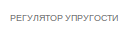
[diagram: root canvas - part 1/5, top center region]
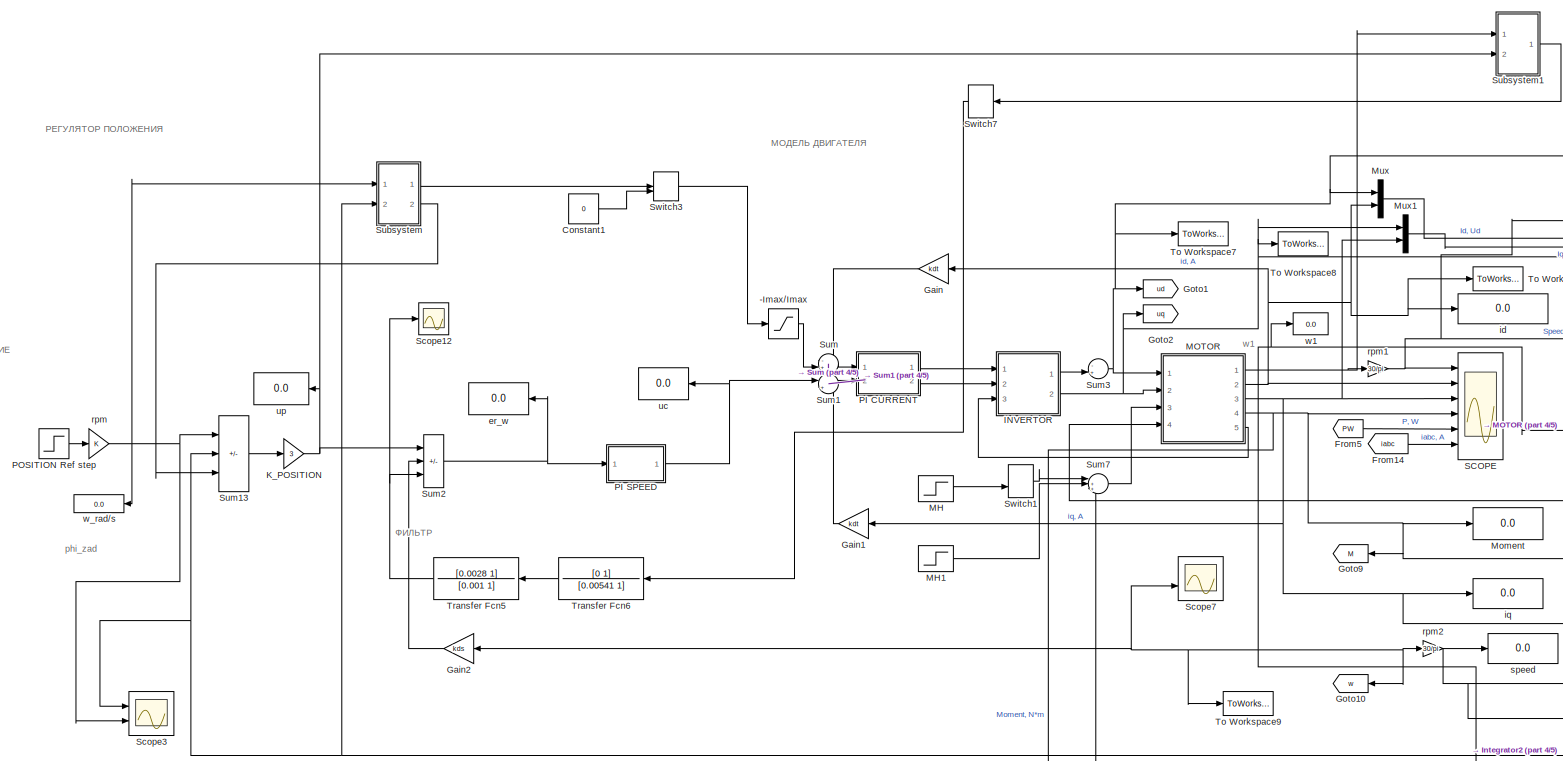
[diagram: root canvas - part 2/5, middle left region]
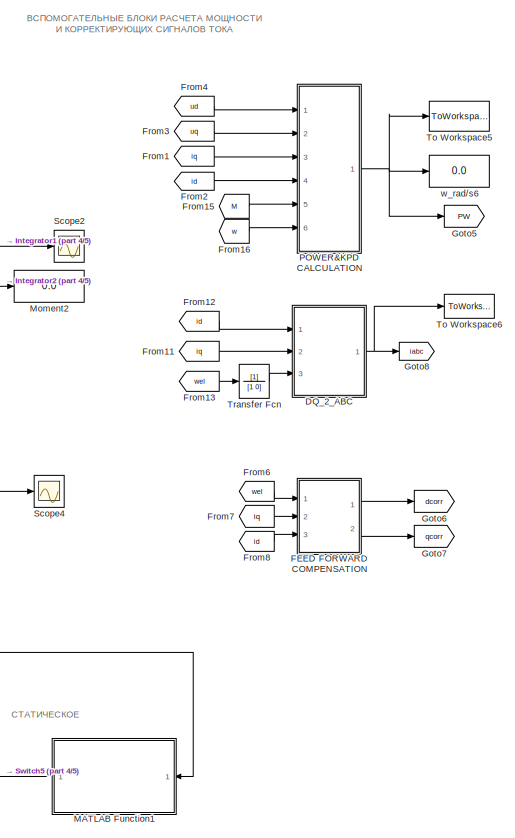
[diagram: root canvas - part 3/5, right side, full height]
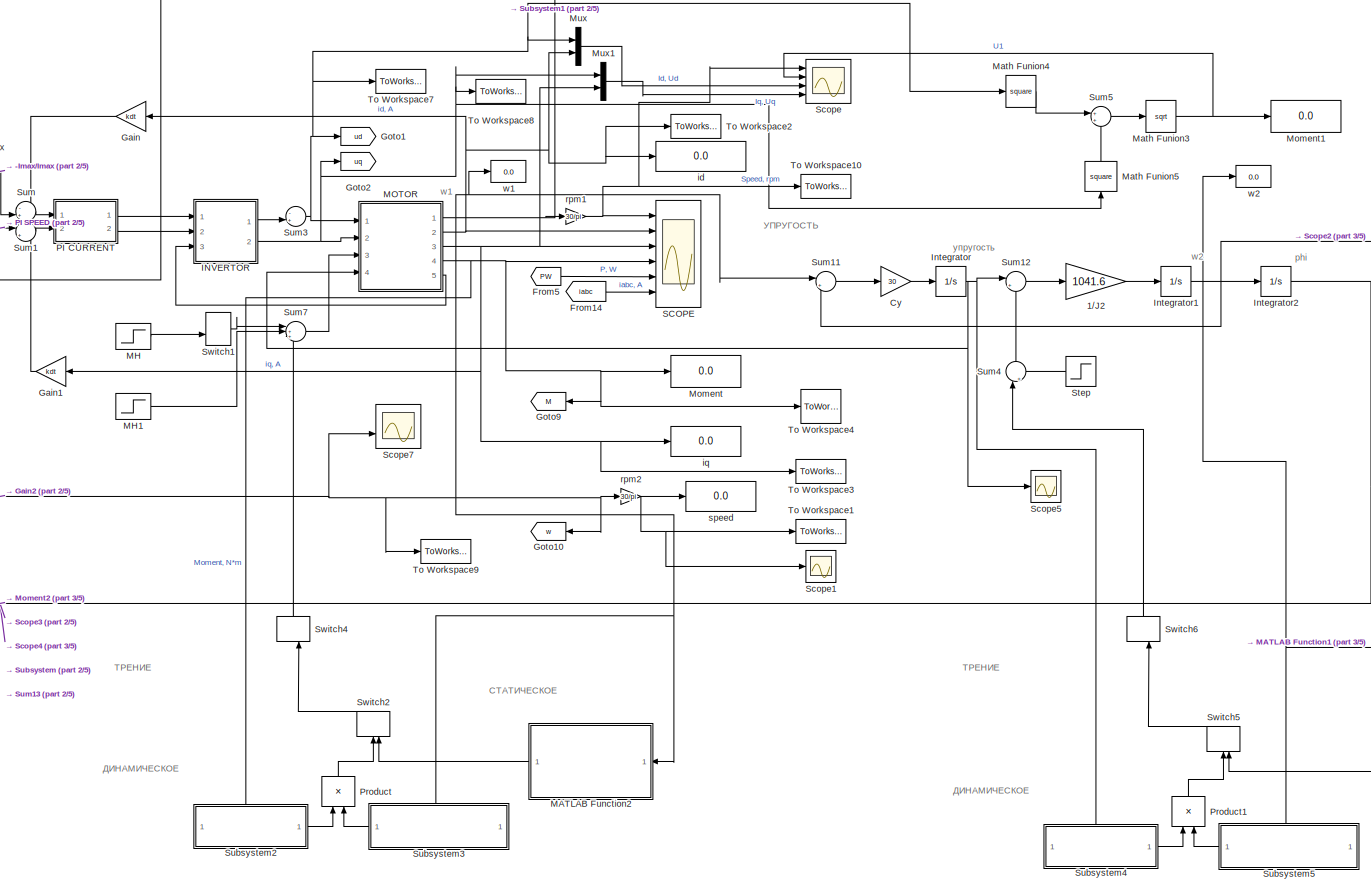
[diagram: root canvas - part 4/5, center side, full height]
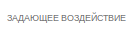
[diagram: root canvas - part 5/5, middle left region]
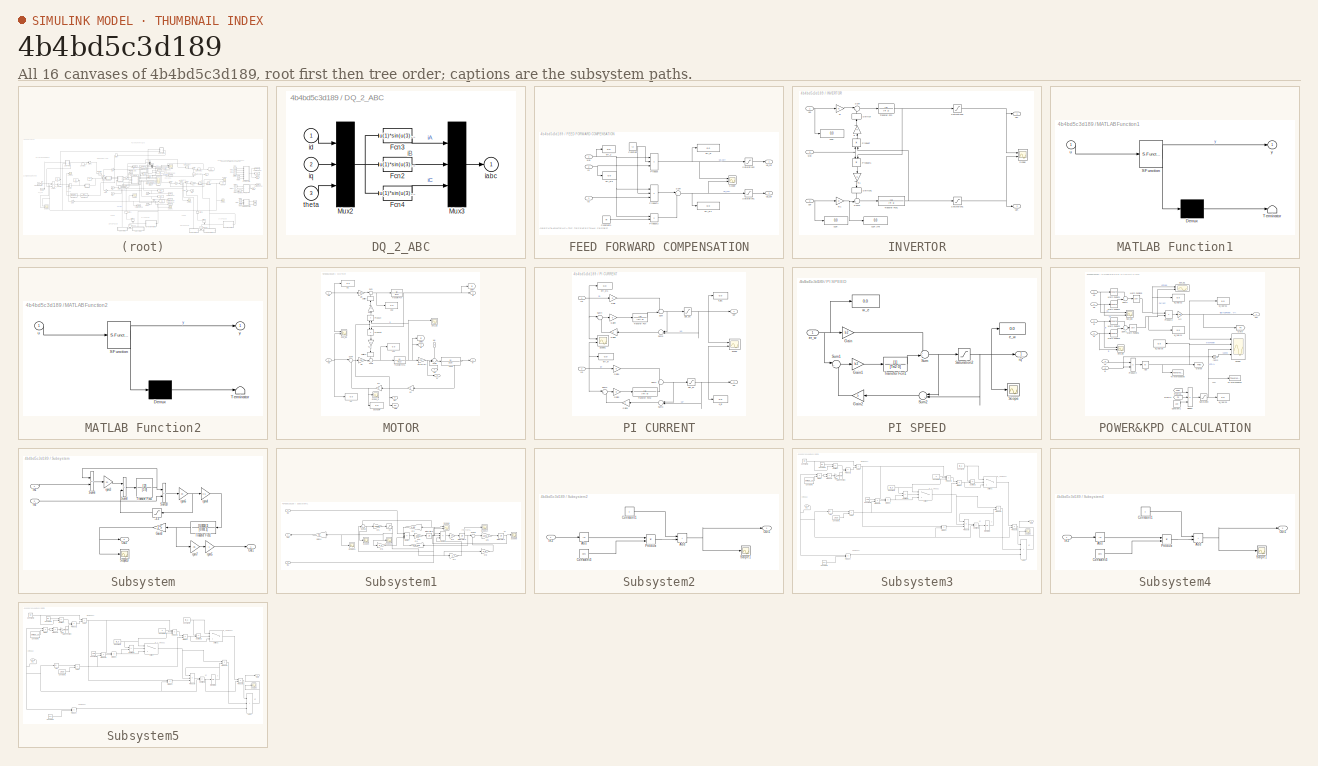
[diagram: thumbnail index - all 16 canvases of the model, root first then tree order]
MODEL slx_4b4bd5c3d189
KIND model
CONFIG AbsTol = auto
CONFIG EnableMultiTasking = off
CONFIG FixedStep = auto
CONFIG MaxStep = auto
CONFIG MinStep = auto
CONFIG RelTol = 1e-3
CONFIG SampleTimeConstraint = Unconstrained
CONFIG SolverName = ode45
CONFIG StartTime = 0.0
CONFIG StopTime = 2.5
BLOCK [Saturate] -Imax//Imax
  LowerLimit = -Imax
  UpperLimit = Imax
BLOCK [Gain] 1//J2
  Gain = 1041.6
BLOCK [Constant] Constant1
  Value = 0
BLOCK [Gain] Cy
  Gain = 30
BLOCK [SubSystem] DQ_2_ABC
  NameLocation = top
  Ports = [3, 1]
  RequestExecContextInheritance = off
BLOCK [Fcn] DQ_2_ABC/Fcn2
  Expr = u(1)*sin(u(3)-2*pi/3) + u(2)*cos(u(3)-2*pi/3)
BLOCK [Fcn] DQ_2_ABC/Fcn3
  Expr = u(1)*sin(u(3)) + u(2)*cos(u(3))
BLOCK [Fcn] DQ_2_ABC/Fcn4
  Expr = u(1)*sin(u(3)+2*pi/3) + u(2)*cos(u(3)+2*pi/3)
BLOCK [Mux] DQ_2_ABC/Mux2
  Inputs = 3
  Ports = [3, 1]
BLOCK [Mux] DQ_2_ABC/Mux3
  Inputs = 3
  Ports = [3, 1]
BLOCK [Outport] DQ_2_ABC/iabc
  InitialOutput = 0
  VectorParamsAs1DForOutWhenUnconnected = off
BLOCK [Inport] DQ_2_ABC/id
BLOCK [Inport] DQ_2_ABC/iq
  Port = 2
BLOCK [Inport] DQ_2_ABC/theta
  Port = 3
BLOCK [SubSystem] FEED FORWARD COMPENSATION
  NameLocation = top
  Ports = [3, 2]
  RequestExecContextInheritance = off
BLOCK [Constant] FEED FORWARD COMPENSATION/Constant
  Value = L1
BLOCK [Constant] FEED FORWARD COMPENSATION/Constant1
  Value = wf
BLOCK [Inport] FEED FORWARD COMPENSATION/Id
  Port = 3
BLOCK [Inport] FEED FORWARD COMPENSATION/Iq
  Port = 2
BLOCK [Product] FEED FORWARD COMPENSATION/Product
  Inputs = 3
  Ports = [3, 1]
  RndMeth = Zero
BLOCK [Product] FEED FORWARD COMPENSATION/Product1
  Inputs = 3
  Ports = [3, 1]
  RndMeth = Zero
BLOCK [Product] FEED FORWARD COMPENSATION/Product2
  Ports = [2, 1]
  RndMeth = Zero
BLOCK [Saturate] FEED FORWARD COMPENSATION/Saturation1
  LowerLimit = -Umax
  UpperLimit = Umax
BLOCK [Saturate] FEED FORWARD COMPENSATION/Saturation2
  LowerLimit = -Umax
  UpperLimit = Umax
BLOCK [Scope] FEED FORWARD COMPENSATION/Scope
  Floating = off
  NumInputPorts = 2
  Ports = [2]
  ScopeSpecificationString = C++SS(StrPVP('Location','[188, 365, 512, 604]'),StrPVP('Open','off'),MxPVP('AxesTitles',54,'struct(''axes1'',''%<SignalLabel>'',''axes2'',''%<SignalLabel>'')'),StrPVP('ShowLegends','off'),StrPVP('LimitDataPoints','on'),StrPVP('DataFormat','Array'),StrPVP('Decimation','1'),StrPVP('BlockParamSampleInput','off'))  <repeated x4 — deduplicated; at blocks: Scope, Sco_E1, Sco_E2, Sco_E3>
BLOCK [Sum] FEED FORWARD COMPENSATION/Sum
  Inputs = |++
  Ports = [2, 1]
BLOCK [Display] FEED FORWARD COMPENSATION/err_2
  Decimation = 1
  Ports = [1]
BLOCK [Display] FEED FORWARD COMPENSATION/err_w
  Decimation = 1
  Ports = [1]
BLOCK [Display] FEED FORWARD COMPENSATION/err_w1
  Decimation = 1
  Ports = [1]
BLOCK [Display] FEED FORWARD COMPENSATION/err_w3
  Decimation = 1
  Ports = [1]
BLOCK [Outport] FEED FORWARD COMPENSATION/ud_cor
  VectorParamsAs1DForOutWhenUnconnected = off
BLOCK [Outport] FEED FORWARD COMPENSATION/uq_cor
  Port = 2
  VectorParamsAs1DForOutWhenUnconnected = off
BLOCK [Inport] FEED FORWARD COMPENSATION/wel
BLOCK [From] From1
  GotoTag = iq
  TagVisibility = global
BLOCK [From] From11
  GotoTag = iq
  TagVisibility = global
BLOCK [From] From12
  GotoTag = id
  TagVisibility = global
BLOCK [From] From13
  GotoTag = wel
  TagVisibility = global
BLOCK [From] From14
  GotoTag = iabc
BLOCK [From] From15
  GotoTag = M
BLOCK [From] From16
  GotoTag = w
BLOCK [From] From2
  GotoTag = id
  TagVisibility = global
BLOCK [From] From3
  GotoTag = uq
  TagVisibility = global
BLOCK [From] From4
  GotoTag = ud
  TagVisibility = global
BLOCK [From] From5
  GotoTag = PW
BLOCK [From] From6
  GotoTag = wel
  IconDisplay = Signal name
  TagVisibility = global
BLOCK [From] From7
  GotoTag = iq
  TagVisibility = global
BLOCK [From] From8
  GotoTag = id
  TagVisibility = global
BLOCK [Gain] Gain
  Gain = kdt
  NameLocation = top
BLOCK [Gain] Gain1
  Gain = kdt
  NameLocation = top
BLOCK [Gain] Gain2
  Gain = kds
  NameLocation = top
BLOCK [Goto] Goto1
  GotoTag = ud
  TagVisibility = global
BLOCK [Goto] Goto10
  GotoTag = w
  NameLocation = top
BLOCK [Goto] Goto2
  GotoTag = uq
  TagVisibility = global
BLOCK [Goto] Goto5
  GotoTag = PW
BLOCK [Goto] Goto6
  GotoTag = dcorr
BLOCK [Goto] Goto7
  GotoTag = qcorr
BLOCK [Goto] Goto8
  GotoTag = iabc
BLOCK [Goto] Goto9
  GotoTag = M
  NameLocation = top
BLOCK [SubSystem] INVERTOR
  NameLocation = top
  Ports = [3, 2]
  RequestExecContextInheritance = off
BLOCK [Product] INVERTOR/Product
  NameLocation = right
  Ports = [2, 1]
  RndMeth = Zero
BLOCK [Product] INVERTOR/Product1
  NameLocation = left
  Ports = [2, 1]
  RndMeth = Zero
BLOCK [Saturate] INVERTOR/Saturation1
  LowerLimit = -Umax
  UpperLimit = Umax
BLOCK [Saturate] INVERTOR/Saturation2
  LowerLimit = -Umax
  UpperLimit = Umax
BLOCK [Scope] INVERTOR/Scope
  Floating = off
  NumInputPorts = 2
  Ports = [2]
  ScopeSpecificationString = Simulink.scopes.TimeScopeBlockCfg('CurrentConfiguration', extmgr.ConfigurationSet(extmgr.Configuration('Core','General UI',true),extmgr.Configuration('Core','Source UI',true),extmgr.Configuration('Sources','WiredSimulink',true,'DataLoggingLimitDataPoints',true,'DataLoggingSaveFormat','Array','DataLoggingDecimation','1','DataLoggingDecimateData',true),extmgr.Configuration('Visuals','Time Domain',tr...<+2312ch>
BLOCK [Sum] INVERTOR/Sum
  Inputs = |++
  Ports = [2, 1]
BLOCK [Sum] INVERTOR/Sum2
  Inputs = -+|
  Ports = [2, 1]
BLOCK [ManualSwitch] INVERTOR/Switch
  NameLocation = right
BLOCK [ManualSwitch] INVERTOR/Switch1
  NameLocation = left
BLOCK [Gain] INVERTOR/Ti
  Gain = Ti
  NameLocation = right
BLOCK [Gain] INVERTOR/Ti1
  Gain = Ti
  NameLocation = left
BLOCK [TransferFcn] INVERTOR/Transfer Fcn
  Denominator = [Ti 1]
BLOCK [TransferFcn] INVERTOR/Transfer Fcn1
  Denominator = [Ti 1]
BLOCK [Gain] INVERTOR/ki
  Gain = ki
BLOCK [Gain] INVERTOR/ki1
  Gain = ki
BLOCK [Display] INVERTOR/u1d*.
  Decimation = 1
  Ports = [1]
BLOCK [Display] INVERTOR/u1q*.
  Decimation = 1
  Ports = [1]
BLOCK [Display] INVERTOR/u1q*.1*ki
  Decimation = 1
  Ports = [1]
BLOCK [Inport] INVERTOR/ud*
BLOCK [Outport] INVERTOR/ud*.
  VectorParamsAs1DForOutWhenUnconnected = off
BLOCK [Inport] INVERTOR/uq*
  Port = 2
BLOCK [Outport] INVERTOR/uq*.
  Port = 2
  VectorParamsAs1DForOutWhenUnconnected = off
BLOCK [Inport] INVERTOR/wel
  Port = 3
BLOCK [Integrator] Integrator
  Ports = [1, 1]
BLOCK [Integrator] Integrator1
  Ports = [1, 1]
BLOCK [Integrator] Integrator2
  Ports = [1, 1]
BLOCK [Gain] K_POSITION
  Gain = 3
BLOCK [SubSystem] MATLAB Function1
  ErrorFcn = Stateflow.Translate.translate
  PermitHierarchicalResolution = ExplicitOnly
  Ports = [1, 1]
  RequestExecContextInheritance = off
  SFBlockType = MATLAB Function
  TreatAsAtomicUnit = on
BLOCK [Demux] MATLAB Function1/ Demux 
  Outputs = 1
  Ports = [1, 1]
BLOCK [S-Function] MATLAB Function1/ SFunction 
  EnableBusSupport = on
  FunctionName = sf_sfun
  PortCounts = [1 2]
  Ports = [1, 2]
  SFcnIsStateOwnerBlock = off
  SFunctionDeploymentMode = off
  Tag = Stateflow S-Function 1
BLOCK [Terminator] MATLAB Function1/ Terminator 
BLOCK [Inport] MATLAB Function1/u
BLOCK [Outport] MATLAB Function1/y
  VectorParamsAs1DForOutWhenUnconnected = off
BLOCK [SubSystem] MATLAB Function2
  ErrorFcn = Stateflow.Translate.translate
  PermitHierarchicalResolution = ExplicitOnly
  Ports = [1, 1]
  RequestExecContextInheritance = off
  SFBlockType = MATLAB Function
  TreatAsAtomicUnit = on
BLOCK [Demux] MATLAB Function2/ Demux 
  Outputs = 1
  Ports = [1, 1]
BLOCK [S-Function] MATLAB Function2/ SFunction 
  EnableBusSupport = on
  FunctionName = sf_sfun
  PortCounts = [1 2]
  Ports = [1, 2]
  SFcnIsStateOwnerBlock = off
  SFunctionDeploymentMode = off
  Tag = Stateflow S-Function 3
BLOCK [Terminator] MATLAB Function2/ Terminator 
BLOCK [Inport] MATLAB Function2/u
BLOCK [Outport] MATLAB Function2/y
  VectorParamsAs1DForOutWhenUnconnected = off
BLOCK [Step] MH
  After = 3
  SampleTime = 0
  Time = 0.15
BLOCK [Step] MH1
  After = 0
  SampleTime = 0
  Time = 0.2
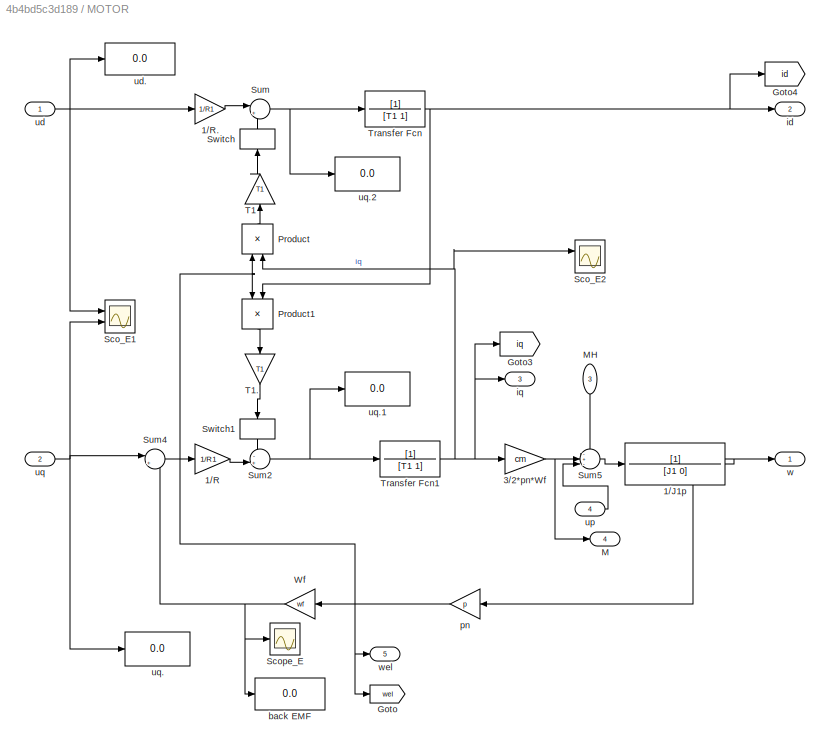
BLOCK [SubSystem] MOTOR
  NameLocation = top
  Ports = [4, 5]
  RequestExecContextInheritance = off
BLOCK [TransferFcn] MOTOR/1//J1p
  Denominator = [J1 0]
BLOCK [Gain] MOTOR/1//R
  Gain = 1/R1
BLOCK [Gain] MOTOR/1//R.
  Gain = 1/R1
BLOCK [Gain] MOTOR/3//2*pn*Wf
  Gain = cm
BLOCK [Goto] MOTOR/Goto
  GotoTag = wel
  TagVisibility = global
BLOCK [Goto] MOTOR/Goto3
  GotoTag = iq
  TagVisibility = global
BLOCK [Goto] MOTOR/Goto4
  GotoTag = id
  TagVisibility = global
BLOCK [Outport] MOTOR/M
  Port = 4
  VectorParamsAs1DForOutWhenUnconnected = off
BLOCK [Inport] MOTOR/MH
  NameLocation = left
  Port = 3
BLOCK [Product] MOTOR/Product
  NameLocation = right
  Ports = [2, 1]
  RndMeth = Zero
BLOCK [Product] MOTOR/Product1
  NameLocation = left
  Ports = [2, 1]
  RndMeth = Zero
BLOCK [Scope] MOTOR/Sco_E1
  Floating = off
  NumInputPorts = 2
  Ports = [2]
  ScopeSpecificationString = Simulink.scopes.TimeScopeBlockCfg('CurrentConfiguration', extmgr.ConfigurationSet(extmgr.Configuration('Core','General UI',true),extmgr.Configuration('Core','Source UI',true),extmgr.Configuration('Sources','WiredSimulink',true,'DataLoggingLimitDataPoints',true,'DataLoggingSaveFormat','Array','DataLoggingDecimation','1','DataLoggingDecimateData',true),extmgr.Configuration('Visuals','Time Domain',tr...<+2279ch>
BLOCK [Scope] MOTOR/Sco_E2
  Floating = off
  NumInputPorts = 2
  Ports = [2]
  ScopeSpecificationString = Simulink.scopes.TimeScopeBlockCfg('CurrentConfiguration', extmgr.ConfigurationSet(extmgr.Configuration('Core','General UI',true),extmgr.Configuration('Core','Source UI',true),extmgr.Configuration('Sources','WiredSimulink',true,'DataLoggingLimitDataPoints',true,'DataLoggingSaveFormat','Array','DataLoggingDecimation','1','DataLoggingDecimateData',true,'DataLoggingVariableName','ScopeData2'),extmgr.C...<+2341ch>
BLOCK [Scope] MOTOR/Scope_E
  Floating = off
  NumInputPorts = 1
  Ports = [1]
  ScopeSpecificationString = Simulink.scopes.TimeScopeBlockCfg('CurrentConfiguration', extmgr.ConfigurationSet(extmgr.Configuration('Core','General UI',true),extmgr.Configuration('Core','Source UI',true),extmgr.Configuration('Sources','WiredSimulink',true,'DataLoggingLimitDataPoints',true,'DataLoggingSaveFormat','Array','DataLoggingDecimation','1','DataLoggingDecimateData',true),extmgr.Configuration('Visuals','Time Domain',tr...<+1649ch>
BLOCK [Sum] MOTOR/Sum
  Inputs = |++
  Ports = [2, 1]
BLOCK [Sum] MOTOR/Sum2
  Inputs = -+|
  Ports = [2, 1]
BLOCK [Sum] MOTOR/Sum4
  Inputs = |+-
  Ports = [2, 1]
BLOCK [Sum] MOTOR/Sum5
  Inputs = -+-|
  Ports = [3, 1]
BLOCK [ManualSwitch] MOTOR/Switch
  NameLocation = right
BLOCK [ManualSwitch] MOTOR/Switch1
  NameLocation = left
BLOCK [Gain] MOTOR/T1
  Gain = T1
  NameLocation = right
BLOCK [Gain] MOTOR/T1.
  Gain = T1
  NameLocation = left
BLOCK [TransferFcn] MOTOR/Transfer Fcn
  Denominator = [T1 1]
BLOCK [TransferFcn] MOTOR/Transfer Fcn1
  Denominator = [T1 1]
BLOCK [Gain] MOTOR/Wf
  Gain = wf
  NameLocation = top
BLOCK [Display] MOTOR/back EMF
  Decimation = 1
  Ports = [1]
BLOCK [Outport] MOTOR/id
  Port = 2
  VectorParamsAs1DForOutWhenUnconnected = off
BLOCK [Outport] MOTOR/iq
  Port = 3
  VectorParamsAs1DForOutWhenUnconnected = off
BLOCK [Gain] MOTOR/pn
  Gain = p
  NameLocation = top
BLOCK [Inport] MOTOR/ud
BLOCK [Display] MOTOR/ud.
  Decimation = 1
  Ports = [1]
BLOCK [Inport] MOTOR/up
  Port = 4
BLOCK [Inport] MOTOR/uq
  Port = 2
BLOCK [Display] MOTOR/uq.
  Decimation = 1
  Ports = [1]
BLOCK [Display] MOTOR/uq.1
  Decimation = 1
  Ports = [1]
BLOCK [Display] MOTOR/uq.2
  Decimation = 1
  Ports = [1]
BLOCK [Outport] MOTOR/w
  VectorParamsAs1DForOutWhenUnconnected = off
BLOCK [Outport] MOTOR/wel
  Port = 5
  VectorParamsAs1DForOutWhenUnconnected = off
BLOCK [Math] Math Funion3
  Operator = sqrt
  Ports = [1, 1]
  SignedPower = on
BLOCK [Math] Math Funion4
  Operator = square
  Ports = [1, 1]
  SignedPower = on
BLOCK [Math] Math Funion5
  NameLocation = right
  Operator = square
  Ports = [1, 1]
  SignedPower = on
BLOCK [Display] Moment
  Decimation = 1
  Ports = [1]
BLOCK [Display] Moment1
  Decimation = 1
  Ports = [1]
BLOCK [Display] Moment2
  Decimation = 1
  Ports = [1]
BLOCK [Mux] Mux
  DisplayOption = bar
  Inputs = 2
  Ports = [2, 1]
BLOCK [Mux] Mux1
  DisplayOption = bar
  Inputs = 2
  Ports = [2, 1]
BLOCK [SubSystem] PI CURRENT
  NameLocation = top
  Ports = [2, 2]
  RequestExecContextInheritance = off
BLOCK [Gain] PI CURRENT/Gain
  Gain = b
BLOCK [Gain] PI CURRENT/Gain1
  Gain = b
BLOCK [Gain] PI CURRENT/Gain2
  Gain = b
BLOCK [Gain] PI CURRENT/Gain3
  NameLocation = top
BLOCK [Gain] PI CURRENT/Gain4
  Gain = b
BLOCK [Gain] PI CURRENT/Gain5
  NameLocation = top
BLOCK [Inport] PI CURRENT/Id*
BLOCK [Inport] PI CURRENT/Iq*
  Port = 2
BLOCK [Saturate] PI CURRENT/Sat_5v
  LowerLimit = -5
  UpperLimit = 5
BLOCK [Saturate] PI CURRENT/Sat_5v.
  LowerLimit = -5
  UpperLimit = 5
BLOCK [Scope] PI CURRENT/Scope
  Floating = off
  NumInputPorts = 2
  Ports = [2]
  ScopeSpecificationString = Simulink.scopes.TimeScopeBlockCfg('CurrentConfiguration', extmgr.ConfigurationSet(extmgr.Configuration('Core','General UI',true),extmgr.Configuration('Core','Source UI',true),extmgr.Configuration('Sources','WiredSimulink',true,'DataLoggingLimitDataPoints',true,'DataLoggingSaveFormat','Array','DataLoggingDecimation','1','DataLoggingDecimateData',true),extmgr.Configuration('Visuals','Time Domain',tr...<+2330ch>
BLOCK [Scope] PI CURRENT/Scope1
  Floating = off
  NumInputPorts = 2
  Ports = [2]
  ScopeSpecificationString = Simulink.scopes.TimeScopeBlockCfg('CurrentConfiguration', extmgr.ConfigurationSet(extmgr.Configuration('Core','General UI',true),extmgr.Configuration('Core','Source UI',true),extmgr.Configuration('Sources','WiredSimulink',true,'DataLoggingLimitDataPoints',true,'DataLoggingSaveFormat','Array','DataLoggingDecimation','1','DataLoggingDecimateData',true),extmgr.Configuration('Visuals','Time Domain',tr...<+2333ch>
BLOCK [Sum] PI CURRENT/Sum
  Ports = [2, 1]
BLOCK [Sum] PI CURRENT/Sum1
  Ports = [2, 1]
BLOCK [Sum] PI CURRENT/Sum2
  Inputs = |+-
  Ports = [2, 1]
BLOCK [Sum] PI CURRENT/Sum3
  Inputs = |+-
  NameLocation = top
  Ports = [2, 1]
BLOCK [Sum] PI CURRENT/Sum4
  Inputs = |+-
  Ports = [2, 1]
BLOCK [Sum] PI CURRENT/Sum5
  Inputs = |+-
  NameLocation = top
  Ports = [2, 1]
BLOCK [TransferFcn] PI CURRENT/Transfer Fcn
  Denominator = [Trt 0]
BLOCK [TransferFcn] PI CURRENT/Transfer Fcn2
  Denominator = [Trt 0]
BLOCK [Display] PI CURRENT/e_iq
  Decimation = 1
  Ports = [1]
BLOCK [Display] PI CURRENT/e_iq1
  Decimation = 1
  Ports = [1]
BLOCK [Display] PI CURRENT/err_w
  Decimation = 1
  Ports = [1]
BLOCK [Display] PI CURRENT/err_w1
  Decimation = 1
  Ports = [1]
BLOCK [Outport] PI CURRENT/ud*
  VectorParamsAs1DForOutWhenUnconnected = off
BLOCK [Outport] PI CURRENT/uq*
  Port = 2
  VectorParamsAs1DForOutWhenUnconnected = off
BLOCK [SubSystem] PI SPEED
  NameLocation = top
  Ports = [1, 1]
  RequestExecContextInheritance = off
BLOCK [Gain] PI SPEED/Gain
  Gain = b2
BLOCK [Gain] PI SPEED/Gain1
  Gain = b2
BLOCK [Gain] PI SPEED/Gain2
  Gain = 5
  NameLocation = top
BLOCK [Saturate] PI SPEED/Saturation2
  LowerLimit = -Imax
  UpperLimit = Imax
BLOCK [Scope] PI SPEED/Scope
  Floating = off
  NumInputPorts = 1
  Ports = [1]
  ScopeSpecificationString = Simulink.scopes.TimeScopeBlockCfg('CurrentConfiguration', extmgr.ConfigurationSet(extmgr.Configuration('Core','General UI',true),extmgr.Configuration('Core','Source UI',true),extmgr.Configuration('Sources','WiredSimulink',true,'DataLoggingLimitDataPoints',true,'DataLoggingSaveFormat','Array','DataLoggingDecimation','1','DataLoggingDecimateData',true),extmgr.Configuration('Visuals','Time Domain',tr...<+1665ch>
BLOCK [Sum] PI SPEED/Sum
  Ports = [2, 1]
BLOCK [Sum] PI SPEED/Sum1
  Inputs = |+-
  Ports = [2, 1]
BLOCK [Sum] PI SPEED/Sum2
  Inputs = |+-
  NameLocation = top
  Ports = [2, 1]
BLOCK [TransferFcn] PI SPEED/Transfer Fcn1
  Denominator = [Trt2 0]
BLOCK [Display] PI SPEED/e_w
  Decimation = 1
  Ports = [1]
BLOCK [Inport] PI SPEED/er_w
BLOCK [Outport] PI SPEED/iq*
  VectorParamsAs1DForOutWhenUnconnected = off
BLOCK [Display] PI SPEED/w_e
  Decimation = 1
  Ports = [1]
BLOCK [Step] POSITION Ref step
  After = 0.1
  SampleTime = 0
  Time = 0
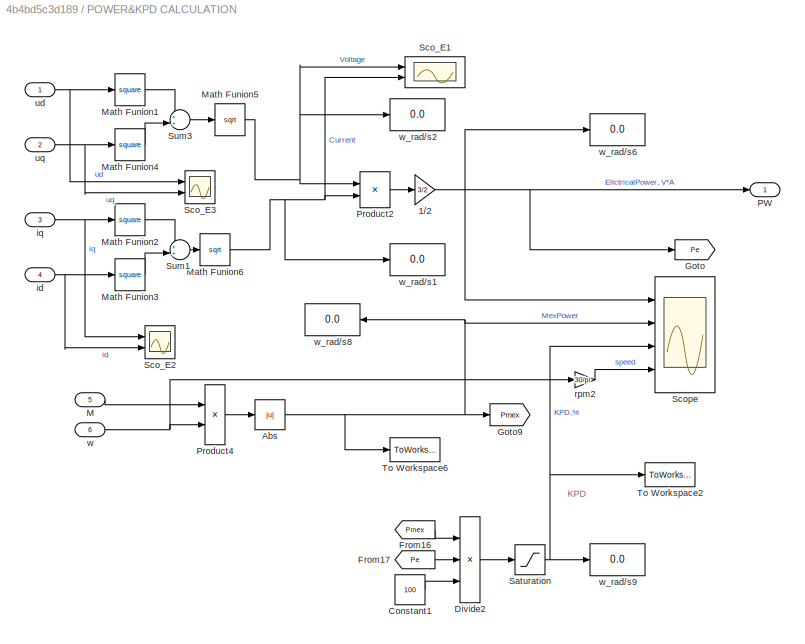
BLOCK [SubSystem] POWER&KPD CALCULATION
  NameLocation = top
  Ports = [6, 1]
  RequestExecContextInheritance = off
BLOCK [Gain] POWER&KPD CALCULATION/1//2
  Gain = 3/2
BLOCK [Abs] POWER&KPD CALCULATION/Abs
  SaturateOnIntegerOverflow = off
BLOCK [Constant] POWER&KPD CALCULATION/Constant1
  Value = 100
BLOCK [Product] POWER&KPD CALCULATION/Divide2
  Inputs = */*
  Ports = [3, 1]
BLOCK [From] POWER&KPD CALCULATION/From16
  GotoTag = Pmex
BLOCK [From] POWER&KPD CALCULATION/From17
  GotoTag = Pe
BLOCK [Goto] POWER&KPD CALCULATION/Goto
  GotoTag = Pe
BLOCK [Goto] POWER&KPD CALCULATION/Goto9
  GotoTag = Pmex
BLOCK [Inport] POWER&KPD CALCULATION/M
  Port = 5
BLOCK [Math] POWER&KPD CALCULATION/Math Funion1
  Operator = square
  Ports = [1, 1]
  SignedPower = on
BLOCK [Math] POWER&KPD CALCULATION/Math Funion2
  Operator = square
  Ports = [1, 1]
  SignedPower = on
BLOCK [Math] POWER&KPD CALCULATION/Math Funion3
  Operator = square
  Ports = [1, 1]
  SignedPower = on
BLOCK [Math] POWER&KPD CALCULATION/Math Funion4
  Operator = square
  Ports = [1, 1]
  SignedPower = on
BLOCK [Math] POWER&KPD CALCULATION/Math Funion5
  Operator = sqrt
  Ports = [1, 1]
  SignedPower = on
BLOCK [Math] POWER&KPD CALCULATION/Math Funion6
  Operator = sqrt
  Ports = [1, 1]
  SignedPower = on
BLOCK [Outport] POWER&KPD CALCULATION/PW
  VectorParamsAs1DForOutWhenUnconnected = off
BLOCK [Product] POWER&KPD CALCULATION/Product2
  Ports = [2, 1]
  RndMeth = Zero
BLOCK [Product] POWER&KPD CALCULATION/Product4
  Ports = [2, 1]
  RndMeth = Zero
BLOCK [Saturate] POWER&KPD CALCULATION/Saturation
  LowerLimit = 0
  UpperLimit = 100
BLOCK [Scope] POWER&KPD CALCULATION/Sco_E1
  Floating = off
  NumInputPorts = 2
  Ports = [2]
BLOCK [Scope] POWER&KPD CALCULATION/Sco_E2
  Floating = off
  NumInputPorts = 2
  Ports = [2]
BLOCK [Scope] POWER&KPD CALCULATION/Sco_E3
  Floating = off
  NumInputPorts = 2
  Ports = [2]
BLOCK [Scope] POWER&KPD CALCULATION/Scope
  Floating = off
  NumInputPorts = 4
  Ports = [4]
  ScopeSpecificationString = C++SS(StrPVP('Location','[188, 365, 512, 604]'),StrPVP('Open','off'),MxPVP('AxesTitles',54,'struct(''axes1'',''%<SignalLabel>'',''axes2'',''%<SignalLabel>'',''axes3'',''%<SignalLabel>'',''axes4'',''%<SignalLabel>'')'),StrPVP('ShowLegends','off'),StrPVP('LimitDataPoints','on'),StrPVP('DataFormat','Array'),StrPVP('Decimation','1'),StrPVP('BlockParamSampleInput','off'))
BLOCK [Sum] POWER&KPD CALCULATION/Sum1
  Ports = [2, 1]
BLOCK [Sum] POWER&KPD CALCULATION/Sum3
  Ports = [2, 1]
BLOCK [ToWorkspace] POWER&KPD CALCULATION/To Workspace2
  MaxDataPoints = inf
  Ports = [1]
  SampleTime = -1
  VariableName = kpd
BLOCK [ToWorkspace] POWER&KPD CALCULATION/To Workspace6
  MaxDataPoints = inf
  Ports = [1]
  SampleTime = -1
  VariableName = pex
BLOCK [Inport] POWER&KPD CALCULATION/id
  Port = 4
BLOCK [Inport] POWER&KPD CALCULATION/iq
  Port = 3
BLOCK [Gain] POWER&KPD CALCULATION/rpm2
  Gain = 30/pi
BLOCK [Inport] POWER&KPD CALCULATION/ud
BLOCK [Inport] POWER&KPD CALCULATION/uq
  Port = 2
BLOCK [Inport] POWER&KPD CALCULATION/w
  Port = 6
BLOCK [Display] POWER&KPD CALCULATION/w_rad//s1
  Decimation = 1
  Ports = [1]
BLOCK [Display] POWER&KPD CALCULATION/w_rad//s2
  Decimation = 1
  Ports = [1]
BLOCK [Display] POWER&KPD CALCULATION/w_rad//s6
  Decimation = 1
  Ports = [1]
BLOCK [Display] POWER&KPD CALCULATION/w_rad//s8
  Decimation = 1
  NameLocation = top
  Ports = [1]
BLOCK [Display] POWER&KPD CALCULATION/w_rad//s9
  Decimation = 1
  Ports = [1]
BLOCK [Product] Product
  NameLocation = right
  Ports = [2, 1]
BLOCK [Product] Product1
  NameLocation = right
  Ports = [2, 1]
BLOCK [Scope] SCOPE
  Floating = off
  NumInputPorts = 6
  Ports = [6]
  ScopeSpecificationString = Simulink.scopes.TimeScopeBlockCfg('CurrentConfiguration', extmgr.ConfigurationSet(extmgr.Configuration('Core','General UI',true),extmgr.Configuration('Core','Source UI',true),extmgr.Configuration('Sources','WiredSimulink',true,'DataLoggingLimitDataPoints',true,'DataLoggingSaveFormat','Array','DataLoggingDecimation','1','DataLoggingDecimateData',true),extmgr.Configuration('Visuals','Time Domain',tr...<+5133ch>
BLOCK [Scope] Scope
  Floating = off
  NumInputPorts = 4
  Ports = [4]
  ScopeSpecificationString = Simulink.scopes.TimeScopeBlockCfg('CurrentConfiguration', extmgr.ConfigurationSet(extmgr.Configuration('Core','General UI',true),extmgr.Configuration('Core','Source UI',true),extmgr.Configuration('Sources','WiredSimulink',true,'DataLoggingSaveFormat','Array','DataLoggingDecimation','1'),extmgr.Configuration('Visuals','Time Domain',true,'SerializedDisplays',{struct('MinYLimReal','-3765132014.41662'...<+3609ch>
BLOCK [Scope] Scope1
  Floating = off
  NumInputPorts = 1
  Ports = [1]
  ScopeSpecificationString = Simulink.scopes.TimeScopeBlockCfg('CurrentConfiguration', extmgr.ConfigurationSet(extmgr.Configuration('Core','General UI',true),extmgr.Configuration('Core','Source UI',true),extmgr.Configuration('Sources','WiredSimulink',true,'DataLoggingLimitDataPoints',true,'DataLoggingSaveFormat','Array','DataLoggingDecimation','1','DataLoggingDecimateData',true),extmgr.Configuration('Visuals','Time Domain',tr...<+860ch>
BLOCK [Scope] Scope12
  Floating = off
  NumInputPorts = 1
  Ports = [1]
  ScopeSpecificationString = Simulink.scopes.TimeScopeBlockCfg('CurrentConfiguration', extmgr.ConfigurationSet(extmgr.Configuration('Core','General UI',true),extmgr.Configuration('Core','Source UI',true),extmgr.Configuration('Sources','WiredSimulink',true,'DataLoggingSaveFormat','Array','DataLoggingDecimation','1','DataLoggingVariableName','ScopeData8'),extmgr.Configuration('Visuals','Time Domain',true,'SerializedDisplays',{s...<+1650ch>
BLOCK [Scope] Scope2
  Floating = off
  NumInputPorts = 1
  Ports = [1]
  ScopeSpecificationString = Simulink.scopes.TimeScopeBlockCfg('CurrentConfiguration', extmgr.ConfigurationSet(extmgr.Configuration('Core','General UI',true),extmgr.Configuration('Core','Source UI',true),extmgr.Configuration('Sources','WiredSimulink',true,'DataLoggingSaveFormat','Array','DataLoggingDecimation','1'),extmgr.Configuration('Visuals','Time Domain',true,'SerializedDisplays',{struct('MinYLimReal','-0.33738','MaxYLim...<+1645ch>
BLOCK [Scope] Scope3
  Floating = off
  NumInputPorts = 2
  Ports = [2]
  ScopeSpecificationString = Simulink.scopes.TimeScopeBlockCfg('CurrentConfiguration', extmgr.ConfigurationSet(extmgr.Configuration('Core','General UI',true),extmgr.Configuration('Core','Source UI',true),extmgr.Configuration('Sources','WiredSimulink',true,'DataLoggingLimitDataPoints',true,'DataLoggingSaveFormat','Array','DataLoggingDecimation','1','DataLoggingDecimateData',true),extmgr.Configuration('Visuals','Time Domain',tr...<+2321ch>
BLOCK [Scope] Scope4
  Floating = off
  NumInputPorts = 1
  Ports = [1]
  ScopeSpecificationString = Simulink.scopes.TimeScopeBlockCfg('CurrentConfiguration', extmgr.ConfigurationSet(extmgr.Configuration('Core','General UI',true,'FigureColor',[0.941176470588235 0.941176470588235 0.941176470588235]),extmgr.Configuration('Core','Source UI',true),extmgr.Configuration('Sources','WiredSimulink',true,'DataLoggingSaveFormat','Array','DataLoggingDecimation','1','DataLoggingVariableName','ScopeData1'),ext...<+1970ch>
BLOCK [Scope] Scope5
  Floating = off
  NumInputPorts = 1
  Ports = [1]
  ScopeSpecificationString = Simulink.scopes.TimeScopeBlockCfg('CurrentConfiguration', extmgr.ConfigurationSet(extmgr.Configuration('Core','General UI',true),extmgr.Configuration('Core','Source UI',true),extmgr.Configuration('Sources','WiredSimulink',true,'DataLoggingSaveFormat','Array','DataLoggingDecimation','1','DataLoggingVariableName','ScopeData2'),extmgr.Configuration('Visuals','Time Domain',true,'SerializedDisplays',{s...<+1670ch>
BLOCK [Scope] Scope7
  Floating = off
  NumInputPorts = 2
  Ports = [2]
  ScopeSpecificationString = Simulink.scopes.TimeScopeBlockCfg('CurrentConfiguration', extmgr.ConfigurationSet(extmgr.Configuration('Core','General UI',true),extmgr.Configuration('Core','Source UI',true),extmgr.Configuration('Sources','WiredSimulink',true,'DataLoggingLimitDataPoints',true,'DataLoggingSaveFormat','Array','DataLoggingDecimation','1','DataLoggingDecimateData',true),extmgr.Configuration('Visuals','Time Domain',tr...<+2288ch>
BLOCK [Step] Step
  After = 0.105
  NameLocation = top
  SampleTime = 0
BLOCK [SubSystem] Subsystem
  Ports = [2, 2]
  RequestExecContextInheritance = off
BLOCK [Saturate] Subsystem/-3 3
  LowerLimit = -3
  UpperLimit = 3
BLOCK [Gain] Subsystem/Gain3
  Gain = .1*5
  NameLocation = top
BLOCK [Inport] Subsystem/In1
BLOCK [Inport] Subsystem/In2
  Port = 2
BLOCK [Outport] Subsystem/Out1
BLOCK [Outport] Subsystem/Out2
  Port = 2
BLOCK [Scope] Subsystem/Scope13
  Floating = off
  NumInputPorts = 1
  Ports = [1]
  ScopeSpecificationString = Simulink.scopes.TimeScopeBlockCfg('CurrentConfiguration', extmgr.ConfigurationSet(extmgr.Configuration('Core','General UI',true),extmgr.Configuration('Core','Source UI',true),extmgr.Configuration('Sources','WiredSimulink',true,'DataLoggingSaveFormat','Array','DataLoggingDecimation','1','DataLoggingVariableName','ScopeData9'),extmgr.Configuration('Visuals','Time Domain',true,'SerializedDisplays',{s...<+1642ch>
BLOCK [Sum] Subsystem/Sum10
  IconShape = rectangular
  Inputs = +-
  Ports = [2, 1]
BLOCK [Sum] Subsystem/Sum6
  IconShape = rectangular
  Inputs = -+
  Ports = [2, 1]
BLOCK [Sum] Subsystem/Sum8
  IconShape = rectangular
  Inputs = +-
  Ports = [2, 1]
BLOCK [TransferFcn] Subsystem/Transfer Fcn1
  Denominator = [0.001 1]
  Numerator = [0.0018 1]
BLOCK [TransferFcn] Subsystem/Transfer Fcn2
  Denominator = [1 0]
  Numerator = [12]
BLOCK [Gain] Subsystem/rpm3
  Gain = 20
BLOCK [Gain] Subsystem/rpm4
  Gain = 0.5
BLOCK [Gain] Subsystem/rpm5
  Gain = -1
BLOCK [Gain] Subsystem/rpm6
  Gain = 30
BLOCK [Gain] Subsystem/rpm7
  Gain = .05
BLOCK [SubSystem] Subsystem1
  Ports = [2, 1]
  RequestExecContextInheritance = off
BLOCK [Saturate] Subsystem1/-3 2
  LowerLimit = -0.5*2
  NameLocation = top
  UpperLimit = 0.5*2
BLOCK [Gain] Subsystem1/1//J1
  Gain = 1041.6
BLOCK [Gain] Subsystem1/Cy1
  Gain = 30
BLOCK [Gain] Subsystem1/Cy2
  Gain = 2000
BLOCK [Gain] Subsystem1/Cy3
  Gain = 0.85
  NameLocation = top
BLOCK [Gain] Subsystem1/Cy4
  Gain = 1/0.048
  NameLocation = top
BLOCK [Gain] Subsystem1/Cy5
  Gain = 10000
BLOCK [Gain] Subsystem1/Cy6
  Gain = 0.1
BLOCK [Gain] Subsystem1/Cy7
  Gain = 1.7
BLOCK [Gain] Subsystem1/Cy8
  Gain = 0.5
BLOCK [Gain] Subsystem1/Gain11
  Gain = 40
  NameLocation = top
BLOCK [Inport] Subsystem1/In1
BLOCK [Inport] Subsystem1/In2
  Port = 2
BLOCK [Integrator] Subsystem1/Integrator3
  Ports = [1, 1]
BLOCK [Integrator] Subsystem1/Integrator4
  Ports = [1, 1]
BLOCK [Integrator] Subsystem1/Integrator5
  Ports = [1, 1]
BLOCK [Outport] Subsystem1/Out1
BLOCK [Scope] Subsystem1/Scope10
  Floating = off
  NumInputPorts = 1
  Ports = [1]
  ScopeSpecificationString = Simulink.scopes.TimeScopeBlockCfg('CurrentConfiguration', extmgr.ConfigurationSet(extmgr.Configuration('Core','General UI',true),extmgr.Configuration('Core','Source UI',true),extmgr.Configuration('Sources','WiredSimulink',true,'DataLoggingSaveFormat','Array','DataLoggingDecimation','1','DataLoggingVariableName','ScopeData6'),extmgr.Configuration('Visuals','Time Domain',true,'SerializedDisplays',{s...<+1659ch>
BLOCK [Scope] Subsystem1/Scope11
  Floating = off
  NumInputPorts = 1
  Ports = [1]
  ScopeSpecificationString = Simulink.scopes.TimeScopeBlockCfg('CurrentConfiguration', extmgr.ConfigurationSet(extmgr.Configuration('Core','General UI',true),extmgr.Configuration('Core','Source UI',true),extmgr.Configuration('Sources','WiredSimulink',true,'DataLoggingSaveFormat','Array','DataLoggingDecimation','1','DataLoggingVariableName','ScopeData7'),extmgr.Configuration('Visuals','Time Domain',true,'SerializedDisplays',{s...<+1655ch>
BLOCK [Scope] Subsystem1/Scope14
  Floating = off
  NumInputPorts = 1
  Ports = [1]
  ScopeSpecificationString = Simulink.scopes.TimeScopeBlockCfg('CurrentConfiguration', extmgr.ConfigurationSet(extmgr.Configuration('Core','General UI',true),extmgr.Configuration('Core','Source UI',true),extmgr.Configuration('Sources','WiredSimulink',true,'DataLoggingSaveFormat','Array','DataLoggingDecimation','1','DataLoggingVariableName','ScopeData1'),extmgr.Configuration('Visuals','Time Domain',true,'SerializedDisplays',{s...<+1674ch>
BLOCK [Scope] Subsystem1/Scope6
  Floating = off
  NumInputPorts = 1
  Ports = [1]
  ScopeSpecificationString = Simulink.scopes.TimeScopeBlockCfg('CurrentConfiguration', extmgr.ConfigurationSet(extmgr.Configuration('Core','General UI',true),extmgr.Configuration('Core','Source UI',true),extmgr.Configuration('Sources','WiredSimulink',true,'DataLoggingSaveFormat','Array','DataLoggingDecimation','1','DataLoggingVariableName','ScopeData3'),extmgr.Configuration('Visuals','Time Domain',true,'SerializedDisplays',{s...<+1673ch>
BLOCK [Scope] Subsystem1/Scope8
  Floating = off
  NumInputPorts = 2
  Ports = [2]
  ScopeSpecificationString = Simulink.scopes.TimeScopeBlockCfg('CurrentConfiguration', extmgr.ConfigurationSet(extmgr.Configuration('Core','General UI',true),extmgr.Configuration('Core','Source UI',true),extmgr.Configuration('Sources','WiredSimulink',true,'DataLoggingSaveFormat','Array','DataLoggingDecimation','1','DataLoggingVariableName','ScopeData4'),extmgr.Configuration('Visuals','Time Domain',true,'SerializedDisplays',{s...<+1683ch>
BLOCK [Scope] Subsystem1/Scope9
  Floating = off
  NumInputPorts = 1
  Ports = [1]
  ScopeSpecificationString = Simulink.scopes.TimeScopeBlockCfg('CurrentConfiguration', extmgr.ConfigurationSet(extmgr.Configuration('Core','General UI',true),extmgr.Configuration('Core','Source UI',true),extmgr.Configuration('Sources','WiredSimulink',true,'DataLoggingSaveFormat','Array','DataLoggingDecimation','1','DataLoggingVariableName','ScopeData5'),extmgr.Configuration('Visuals','Time Domain',true,'SerializedDisplays',{s...<+1648ch>
BLOCK [Sum] Subsystem1/Sum15
  IconShape = rectangular
  Inputs = |+-+
  Ports = [3, 1]
BLOCK [Sum] Subsystem1/Sum16
  Inputs = |+-
  Ports = [2, 1]
BLOCK [Sum] Subsystem1/Sum17
  IconShape = rectangular
  Inputs = +--+
  Ports = [4, 1]
BLOCK [Sum] Subsystem1/Sum18
  Inputs = -+|
  Ports = [2, 1]
BLOCK [SubSystem] Subsystem2
  PortSchema = {"entries":[{"content":{"sides":[{"content":{"connectorIds":[]},"type":"ConnectorPlacement.EquallySpacedRectSide","uuid":"9e1ea793-1db2-4017-bc49-e2c095734c7f"},{"content":{"connectorIds":["Out1"],"side":"RIGHT"},"type":"ConnectorPlacement.EquallySpacedRectSide","uuid":"98a308e3-3e34-4e0b-b6ca-8e736cee5fdb"},{"content":{"connectorIds":["In1"],"side":"TOP"},"type":"ConnectorPlacement.EquallySpacedR...<+240ch>  <repeated x4 — deduplicated; at blocks: Subsystem2, Subsystem3, Subsystem4, Subsystem5>
  Ports = [1, 1]
  RequestExecContextInheritance = off
BLOCK [Abs] Subsystem2/Abs
  SaturateOnIntegerOverflow = off
BLOCK [Sum] Subsystem2/Add
  IconShape = rectangular
  Ports = [2, 1]
BLOCK [Constant] Subsystem2/Constant1
BLOCK [Constant] Subsystem2/Constant3
  Value = Kml
BLOCK [Inport] Subsystem2/In2
BLOCK [Outport] Subsystem2/Out1
  VectorParamsAs1DForOutWhenUnconnected = off
BLOCK [Product] Subsystem2/Product
  Ports = [2, 1]
BLOCK [Scope] Subsystem2/Scope1
  Floating = off
  NumInputPorts = 1
  Ports = [1]
  ScopeSpecificationString = Simulink.scopes.TimeScopeBlockCfg('CurrentConfiguration', extmgr.ConfigurationSet(extmgr.Configuration('Core','General UI',true),extmgr.Configuration('Core','Source UI',true),extmgr.Configuration('Sources','WiredSimulink',true,'DataLoggingVariableName','ScopeData1'),extmgr.Configuration('Visuals','Time Domain',true,'SerializedDisplays',{struct('MinYLimReal','-0.125','MaxYLimReal','1.125','YLabelRe...<+1425ch>
BLOCK [SubSystem] Subsystem3
  Ports = [1, 1]
  RequestExecContextInheritance = off
BLOCK [Abs] Subsystem3/Abs
  SaturateOnIntegerOverflow = off
BLOCK [Sum] Subsystem3/Add1
  IconShape = rectangular
  Ports = [2, 1]
BLOCK [Sum] Subsystem3/Add2
  IconShape = rectangular
  Inputs = +++
  Ports = [3, 1]
BLOCK [Sum] Subsystem3/Add3
  IconShape = rectangular
  Ports = [2, 1]
BLOCK [Constant] Subsystem3/Constant1
  Value = 1e-10
BLOCK [Constant] Subsystem3/Constant2
  Value = Mc
BLOCK [Constant] Subsystem3/Constant3
  Value = Kv2
BLOCK [Constant] Subsystem3/Constant4
  Value = Ms
BLOCK [Constant] Subsystem3/Constant5
  Value = omega_2s
BLOCK [Constant] Subsystem3/Constant6
  Value = Tmin
BLOCK [Constant] Subsystem3/Constant7
  Value = ro_0
BLOCK [Constant] Subsystem3/Constant8
  Value = 4
BLOCK [Constant] Subsystem3/Constant9
  Value = ro_1
BLOCK [Product] Subsystem3/Divide
  Inputs = */
  Ports = [2, 1]
BLOCK [Product] Subsystem3/Divide1
  Inputs = */
  Ports = [2, 1]
BLOCK [Product] Subsystem3/Divide2
  Inputs = */
  Ports = [2, 1]
BLOCK [Product] Subsystem3/Divide3
  Inputs = /*
  Ports = [2, 1]
BLOCK [Gain] Subsystem3/Gain
  Gain = -1
BLOCK [Inport] Subsystem3/In2
BLOCK [Integrator] Subsystem3/Integrator2
  Ports = [1, 1]
BLOCK [Math] Subsystem3/Math Function
  Ports = [1, 1]
  SignedPower = on
BLOCK [Outport] Subsystem3/Out1
  VectorParamsAs1DForOutWhenUnconnected = off
BLOCK [Product] Subsystem3/Product
  Ports = [2, 1]
BLOCK [Product] Subsystem3/Product1
  Ports = [2, 1]
BLOCK [Product] Subsystem3/Product2
  Ports = [2, 1]
BLOCK [Product] Subsystem3/Product3
  Inputs = 3
  Ports = [3, 1]
BLOCK [Product] Subsystem3/Product4
  Ports = [2, 1]
BLOCK [Product] Subsystem3/Product5
  Ports = [2, 1]
BLOCK [Product] Subsystem3/Product6
  Inputs = 3
  Ports = [3, 1]
BLOCK [Product] Subsystem3/Product7
  Ports = [2, 1]
BLOCK [Scope] Subsystem3/Scope4
  Floating = off
  NumInputPorts = 1
  Ports = [1]
  ScopeSpecificationString = Simulink.scopes.TimeScopeBlockCfg('CurrentConfiguration', extmgr.ConfigurationSet(extmgr.Configuration('Core','General UI',true),extmgr.Configuration('Core','Source UI',true),extmgr.Configuration('Sources','WiredSimulink',true,'DataLoggingVariableName','ScopeData11'),extmgr.Configuration('Visuals','Time Domain',true,'SerializedDisplays',{struct('MinYLimReal','-0.0694','MaxYLimReal','0.32874','YLab...<+1439ch>
BLOCK [Sum] Subsystem3/Subtract
  IconShape = rectangular
  Inputs = +-
  Ports = [2, 1]
BLOCK [Sum] Subsystem3/Subtract1
  IconShape = rectangular
  Inputs = -+
  Ports = [2, 1]
BLOCK [Sum] Subsystem3/Subtract2
  IconShape = rectangular
  Inputs = -+
  Ports = [2, 1]
BLOCK [Sum] Subsystem3/Subtract3
  IconShape = rectangular
  Inputs = -+
  Ports = [2, 1]
BLOCK [Switch] Subsystem3/Switch
  InputSameDT = off
  SaturateOnIntegerOverflow = off
BLOCK [Switch] Subsystem3/Switch1
  InputSameDT = off
  SaturateOnIntegerOverflow = off
BLOCK [SubSystem] Subsystem4
  Ports = [1, 1]
  RequestExecContextInheritance = off
BLOCK [Abs] Subsystem4/Abs
  SaturateOnIntegerOverflow = off
BLOCK [Sum] Subsystem4/Add
  IconShape = rectangular
  Ports = [2, 1]
BLOCK [Constant] Subsystem4/Constant1
BLOCK [Constant] Subsystem4/Constant3
  Value = Kml
BLOCK [Inport] Subsystem4/In2
BLOCK [Outport] Subsystem4/Out1
  VectorParamsAs1DForOutWhenUnconnected = off
BLOCK [Product] Subsystem4/Product
  Ports = [2, 1]
BLOCK [Scope] Subsystem4/Scope1
  Floating = off
  NumInputPorts = 1
  Ports = [1]
  ScopeSpecificationString = Simulink.scopes.TimeScopeBlockCfg('CurrentConfiguration', extmgr.ConfigurationSet(extmgr.Configuration('Core','General UI',true),extmgr.Configuration('Core','Source UI',true),extmgr.Configuration('Sources','WiredSimulink',true,'DataLoggingVariableName','ScopeData1'),extmgr.Configuration('Visuals','Time Domain',true,'SerializedDisplays',{struct('MinYLimReal','-0.125','MaxYLimReal','1.125','YLabelRe...<+1425ch>
BLOCK [SubSystem] Subsystem5
  Ports = [1, 1]
  RequestExecContextInheritance = off
BLOCK [Abs] Subsystem5/Abs
  SaturateOnIntegerOverflow = off
BLOCK [Sum] Subsystem5/Add1
  IconShape = rectangular
  Ports = [2, 1]
BLOCK [Sum] Subsystem5/Add2
  IconShape = rectangular
  Inputs = +++
  Ports = [3, 1]
BLOCK [Sum] Subsystem5/Add3
  IconShape = rectangular
  Ports = [2, 1]
BLOCK [Constant] Subsystem5/Constant1
  Value = 1e-10
BLOCK [Constant] Subsystem5/Constant2
  Value = Mc
BLOCK [Constant] Subsystem5/Constant3
  Value = Kv2
BLOCK [Constant] Subsystem5/Constant4
  Value = Ms
BLOCK [Constant] Subsystem5/Constant5
  Value = omega_2s
BLOCK [Constant] Subsystem5/Constant6
  Value = Tmin
BLOCK [Constant] Subsystem5/Constant7
  Value = ro_0
BLOCK [Constant] Subsystem5/Constant8
  Value = 4
BLOCK [Constant] Subsystem5/Constant9
  Value = ro_1
BLOCK [Product] Subsystem5/Divide
  Inputs = */
  Ports = [2, 1]
BLOCK [Product] Subsystem5/Divide1
  Inputs = */
  Ports = [2, 1]
BLOCK [Product] Subsystem5/Divide2
  Inputs = */
  Ports = [2, 1]
BLOCK [Product] Subsystem5/Divide3
  Inputs = /*
  Ports = [2, 1]
BLOCK [Gain] Subsystem5/Gain
  Gain = -1
BLOCK [Inport] Subsystem5/In2
BLOCK [Integrator] Subsystem5/Integrator2
  Ports = [1, 1]
BLOCK [Math] Subsystem5/Math Function
  Ports = [1, 1]
  SignedPower = on
BLOCK [Outport] Subsystem5/Out1
  VectorParamsAs1DForOutWhenUnconnected = off
BLOCK [Product] Subsystem5/Product
  Ports = [2, 1]
BLOCK [Product] Subsystem5/Product1
  Ports = [2, 1]
BLOCK [Product] Subsystem5/Product2
  Ports = [2, 1]
BLOCK [Product] Subsystem5/Product3
  Inputs = 3
  Ports = [3, 1]
BLOCK [Product] Subsystem5/Product4
  Ports = [2, 1]
BLOCK [Product] Subsystem5/Product5
  Ports = [2, 1]
BLOCK [Product] Subsystem5/Product6
  Inputs = 3
  Ports = [3, 1]
BLOCK [Product] Subsystem5/Product7
  Ports = [2, 1]
BLOCK [Scope] Subsystem5/Scope4
  Floating = off
  NumInputPorts = 1
  Ports = [1]
  ScopeSpecificationString = Simulink.scopes.TimeScopeBlockCfg('CurrentConfiguration', extmgr.ConfigurationSet(extmgr.Configuration('Core','General UI',true),extmgr.Configuration('Core','Source UI',true),extmgr.Configuration('Sources','WiredSimulink',true,'DataLoggingVariableName','ScopeData11'),extmgr.Configuration('Visuals','Time Domain',true,'SerializedDisplays',{struct('MinYLimReal','-0.0694','MaxYLimReal','0.32874','YLab...<+1439ch>
BLOCK [Sum] Subsystem5/Subtract
  IconShape = rectangular
  Inputs = +-
  Ports = [2, 1]
BLOCK [Sum] Subsystem5/Subtract1
  IconShape = rectangular
  Inputs = -+
  Ports = [2, 1]
BLOCK [Sum] Subsystem5/Subtract2
  IconShape = rectangular
  Inputs = -+
  Ports = [2, 1]
BLOCK [Sum] Subsystem5/Subtract3
  IconShape = rectangular
  Inputs = -+
  Ports = [2, 1]
BLOCK [Switch] Subsystem5/Switch
  InputSameDT = off
  SaturateOnIntegerOverflow = off
BLOCK [Switch] Subsystem5/Switch1
  InputSameDT = off
  SaturateOnIntegerOverflow = off
BLOCK [Sum] Sum
  Inputs = -+|
  Ports = [2, 1]
BLOCK [Sum] Sum1
  Inputs = |+-
  Ports = [2, 1]
BLOCK [Sum] Sum11
  Inputs = |+-
  Ports = [2, 1]
BLOCK [Sum] Sum12
  Inputs = |+-
  Ports = [2, 1]
BLOCK [Sum] Sum13
  IconShape = rectangular
  Inputs = |+-+
  Ports = [3, 1]
BLOCK [Sum] Sum2
  IconShape = rectangular
  Inputs = |+--
  Ports = [3, 1]
BLOCK [Sum] Sum3
  Inputs = -+|
  Ports = [2, 1]
BLOCK [Sum] Sum4
  Inputs = |++
  NameLocation = right
  Ports = [2, 1]
BLOCK [Sum] Sum5
  Ports = [2, 1]
BLOCK [Sum] Sum7
  Inputs = |+++
  Ports = [3, 1]
BLOCK [ManualSwitch] Switch1
BLOCK [ManualSwitch] Switch2
  NameLocation = right
BLOCK [ManualSwitch] Switch3
BLOCK [ManualSwitch] Switch4
  NameLocation = right
BLOCK [ManualSwitch] Switch5
  NameLocation = right
BLOCK [ManualSwitch] Switch6
  NameLocation = right
BLOCK [ManualSwitch] Switch7
  NameLocation = top
BLOCK [ToWorkspace] To Workspace1
  MaxDataPoints = inf
  Ports = [1]
  SampleTime = -1
  VariableName = w
BLOCK [ToWorkspace] To Workspace10
  MaxDataPoints = inf
  Ports = [1]
  SampleTime = -1
  VariableName = speed
BLOCK [ToWorkspace] To Workspace2
  MaxDataPoints = inf
  Ports = [1]
  SampleTime = -1
  VariableName = id
BLOCK [ToWorkspace] To Workspace3
  MaxDataPoints = inf
  Ports = [1]
  SampleTime = -1
  VariableName = iq
BLOCK [ToWorkspace] To Workspace4
  MaxDataPoints = inf
  Ports = [1]
  SampleTime = -1
  VariableName = m
BLOCK [ToWorkspace] To Workspace5
  MaxDataPoints = inf
  Ports = [1]
  SampleTime = -1
  VariableName = pw
BLOCK [ToWorkspace] To Workspace6
  MaxDataPoints = inf
  Ports = [1]
  SampleTime = -1
  VariableName = abc
BLOCK [ToWorkspace] To Workspace7
  MaxDataPoints = inf
  Ports = [1]
  SampleTime = -1
  VariableName = ud
BLOCK [ToWorkspace] To Workspace8
  MaxDataPoints = inf
  Ports = [1]
  SampleTime = -1
  VariableName = uq
BLOCK [ToWorkspace] To Workspace9
  MaxDataPoints = inf
  Ports = [1]
  SampleTime = -1
  VariableName = wr
BLOCK [TransferFcn] Transfer Fcn
  Denominator = [1 0]
BLOCK [TransferFcn] Transfer Fcn5
  Denominator = [0.001 1]
  Numerator = [0.0028 1]
BLOCK [TransferFcn] Transfer Fcn6
  Denominator = [0.00541 1]
  Numerator = [0 1]
BLOCK [Display] er_w
  Decimation = 1
  Ports = [1]
BLOCK [Display] id
  Decimation = 1
  Ports = [1]
BLOCK [Display] iq
  Decimation = 1
  Ports = [1]
BLOCK [Gain] rpm
BLOCK [Gain] rpm1
  Gain = 30/pi
BLOCK [Gain] rpm2
  Gain = 30/pi
BLOCK [Display] speed
  Decimation = 1
  Ports = [1]
BLOCK [Display] uc
  Decimation = 1
  NameLocation = top
  Ports = [1]
BLOCK [Display] up
  Decimation = 1
  NameLocation = top
  Ports = [1]
BLOCK [Display] w1
  Decimation = 1
  Ports = [1]
BLOCK [Display] w2
  Decimation = 1
  Ports = [1]
BLOCK [Display] w_rad//s
  Decimation = 1
  NameLocation = top
  Ports = [1]
BLOCK [Display] w_rad//s6
  Decimation = 1
  Ports = [1]
ANNOTATION (root): МОДЕЛЬ ДВИГАТЕЛЯ
ANNOTATION (root): phi
ANNOTATION (root): phi_zad
ANNOTATION (root): w1
ANNOTATION (root): w2
ANNOTATION (root): ВСПОМОГАТЕЛЬНЫЕ БЛОКИ РАСЧЕТА МОЩНОСТИ И КОРРЕКТИРУЮЩИХ СИГНАЛОВ ТОКА
ANNOTATION (root): ДИНАМИЧЕСКОЕ
ANNOTATION (root): ЗАДАЮЩЕЕ ВОЗДЕЙСТВИЕ
ANNOTATION (root): РЕГУЛЯТОР ПОЛОЖЕНИЯ
ANNOTATION (root): РЕГУЛЯТОР УПРУГОСТИ
ANNOTATION (root): СТАТИЧЕСКОЕ
ANNOTATION (root): ТРЕНИЕ
ANNOTATION (root): УПРУГОСТЬ
ANNOTATION (root): ФИЛЬТР
ANNOTATION (root): упругость
ANNOTATION DQ_2_ABC: iB
ANNOTATION FEED FORWARD COMPENSATION: ПРОВЕРИТЬ КОМПЕНСАТОР ПЕРЕКРЕСТНЫХ СВЯЗЕЙ
ANNOTATION POWER&KPD CALCULATION: KPD
ANNOTATION Subsystem1: w2
ANNOTATION Subsystem1: упругость
ANNOTATION Subsystem3: F(omega2)
ANNOTATION Subsystem3: G(omega2)
ANNOTATION Subsystem3: Mf
ANNOTATION Subsystem3: dz
ANNOTATION Subsystem3: omega2
ANNOTATION Subsystem3: ro_0_omega2
ANNOTATION Subsystem3: ro_1(omega2)
ANNOTATION Subsystem3: z
ANNOTATION Subsystem5: F(omega2)
ANNOTATION Subsystem5: G(omega2)
ANNOTATION Subsystem5: Mf
ANNOTATION Subsystem5: dz
ANNOTATION Subsystem5: omega2
ANNOTATION Subsystem5: ro_0_omega2
ANNOTATION Subsystem5: ro_1(omega2)
ANNOTATION Subsystem5: z
LINE -Imax//Imax:1 -> Sum:2
LINE 1//J2:1 -> Integrator1:1
LINE Constant1:1 -> Switch3:2
LINE Cy:1 -> Integrator:1
LINE DQ_2_ABC/Fcn2:1 -> DQ_2_ABC/Mux3:2
LINE DQ_2_ABC/Fcn3:1 -> DQ_2_ABC/Mux3:1
LINE DQ_2_ABC/Fcn4:1 -> DQ_2_ABC/Mux3:3
NET DQ_2_ABC/Mux2:1 -> DQ_2_ABC/Fcn2:1, DQ_2_ABC/Fcn3:1, DQ_2_ABC/Fcn4:1
LINE DQ_2_ABC/Mux3:1 -> DQ_2_ABC/iabc:1
LINE DQ_2_ABC/id:1 -> DQ_2_ABC/Mux2:1
LINE DQ_2_ABC/iq:1 -> DQ_2_ABC/Mux2:2
LINE DQ_2_ABC/theta:1 -> DQ_2_ABC/Mux2:3
NET DQ_2_ABC:1 -> Goto8:1, To Workspace6:1
LINE FEED FORWARD COMPENSATION/Constant1:1 -> FEED FORWARD COMPENSATION/Product2:2
NET FEED FORWARD COMPENSATION/Constant:1 -> FEED FORWARD COMPENSATION/Product1:2, FEED FORWARD COMPENSATION/Product:2
LINE FEED FORWARD COMPENSATION/Id:1 -> FEED FORWARD COMPENSATION/Product1:3
NET FEED FORWARD COMPENSATION/Iq:1 -> FEED FORWARD COMPENSATION/Product:3, FEED FORWARD COMPENSATION/err_w3:1
LINE FEED FORWARD COMPENSATION/Product1:1 -> FEED FORWARD COMPENSATION/Sum:1
LINE FEED FORWARD COMPENSATION/Product2:1 -> FEED FORWARD COMPENSATION/Sum:2
NET FEED FORWARD COMPENSATION/Product:1 -> FEED FORWARD COMPENSATION/Saturation2:1, FEED FORWARD COMPENSATION/Scope:1, FEED FORWARD COMPENSATION/err_w:1
LINE FEED FORWARD COMPENSATION/Saturation1:1 -> FEED FORWARD COMPENSATION/uq_cor:1
LINE FEED FORWARD COMPENSATION/Saturation2:1 -> FEED FORWARD COMPENSATION/ud_cor:1
NET FEED FORWARD COMPENSATION/Sum:1 -> FEED FORWARD COMPENSATION/Saturation1:1, FEED FORWARD COMPENSATION/Scope:2, FEED FORWARD COMPENSATION/err_w1:1
NET FEED FORWARD COMPENSATION/wel:1 -> FEED FORWARD COMPENSATION/Product1:1, FEED FORWARD COMPENSATION/Product2:1, FEED FORWARD COMPENSATION/Product:1, FEED FORWARD COMPENSATION/err_2:1
LINE FEED FORWARD COMPENSATION:1 -> Goto6:1
LINE FEED FORWARD COMPENSATION:2 -> Goto7:1
LINE From11:1 -> DQ_2_ABC:2
LINE From12:1 -> DQ_2_ABC:1
LINE From13:1 -> Transfer Fcn:1
LINE From14:1 -> SCOPE:6
LINE From15:1 -> POWER&KPD CALCULATION:5
LINE From16:1 -> POWER&KPD CALCULATION:6
LINE From1:1 -> POWER&KPD CALCULATION:3
LINE From2:1 -> POWER&KPD CALCULATION:4
LINE From3:1 -> POWER&KPD CALCULATION:2
LINE From4:1 -> POWER&KPD CALCULATION:1
LINE From5:1 -> SCOPE:5
LINE From6:1 -> FEED FORWARD COMPENSATION:1
LINE From7:1 -> FEED FORWARD COMPENSATION:2
LINE From8:1 -> FEED FORWARD COMPENSATION:3
LINE Gain1:1 -> Sum1:2
LINE Gain2:1 -> Sum2:2
LINE Gain:1 -> Sum:1
LINE INVERTOR/Product1:1 -> INVERTOR/Ti1:1
LINE INVERTOR/Product:1 -> INVERTOR/Ti:1
NET INVERTOR/Saturation1:1 -> INVERTOR/Scope:2, INVERTOR/uq*.:1
NET INVERTOR/Saturation2:1 -> INVERTOR/Scope:1, INVERTOR/ud*.:1
LINE INVERTOR/Sum2:1 -> INVERTOR/Transfer Fcn1:1
LINE INVERTOR/Sum:1 -> INVERTOR/Transfer Fcn:1
LINE INVERTOR/Switch1:1 -> INVERTOR/Sum2:1
LINE INVERTOR/Switch:1 -> INVERTOR/Sum:2
LINE INVERTOR/Ti1:1 -> INVERTOR/Switch1:1
LINE INVERTOR/Ti:1 -> INVERTOR/Switch:1
NET INVERTOR/Transfer Fcn1:1 -> INVERTOR/Product:2, INVERTOR/Saturation1:1
NET INVERTOR/Transfer Fcn:1 -> INVERTOR/Product1:2, INVERTOR/Saturation2:1
NET INVERTOR/ki1:1 -> INVERTOR/Sum2:2, INVERTOR/u1q*.1*ki:1
LINE INVERTOR/ki:1 -> INVERTOR/Sum:1
NET INVERTOR/ud*:1 -> INVERTOR/ki:1, INVERTOR/u1d*.:1
NET INVERTOR/uq*:1 -> INVERTOR/ki1:1, INVERTOR/u1q*.:1
NET INVERTOR/wel:1 -> INVERTOR/Product1:1, INVERTOR/Product:1
LINE INVERTOR:1 -> Sum3:2
NET INVERTOR:2 -> Goto2:1, MOTOR:2, Math Funion5:1, Mux1:1, To Workspace8:1
NET Integrator1:1 -> Integrator2:1, MATLAB Function1:1, Scope2:1, Subsystem5:1, Sum11:2, w2:1
NET Integrator2:1 -> Moment2:1, Scope3:1, Scope4:1, Subsystem:2, Sum13:2
NET Integrator:1 -> MOTOR:4, Scope5:1, Subsystem4:1, Sum12:1
NET K_POSITION:1 -> Subsystem1:2, Sum2:1, up:1
LINE MATLAB Function1:1 -> Switch5:2
LINE MATLAB Function2:1 -> Switch2:2
LINE MH1:1 -> Sum7:2
LINE MH:1 -> Switch1:2
NET MOTOR/1//J1p:1 -> MOTOR/pn:1, MOTOR/w:1
LINE MOTOR/1//R.:1 -> MOTOR/Sum:1
LINE MOTOR/1//R:1 -> MOTOR/Sum2:2
NET MOTOR/3//2*pn*Wf:1 -> MOTOR/M:1, MOTOR/Sum5:2
LINE MOTOR/MH:1 -> MOTOR/Sum5:1
LINE MOTOR/Product1:1 -> MOTOR/T1.:1
LINE MOTOR/Product:1 -> MOTOR/T1:1
NET MOTOR/Sum2:1 -> MOTOR/Transfer Fcn1:1, MOTOR/uq.1:1
LINE MOTOR/Sum4:1 -> MOTOR/1//R:1
LINE MOTOR/Sum5:1 -> MOTOR/1//J1p:1
NET MOTOR/Sum:1 -> MOTOR/Transfer Fcn:1, MOTOR/uq.2:1
LINE MOTOR/Switch1:1 -> MOTOR/Sum2:1
LINE MOTOR/Switch:1 -> MOTOR/Sum:2
LINE MOTOR/T1.:1 -> MOTOR/Switch1:1
LINE MOTOR/T1:1 -> MOTOR/Switch:1
NET MOTOR/Transfer Fcn1:1 -> MOTOR/3//2*pn*Wf:1, MOTOR/Goto3:1, MOTOR/Product:2, MOTOR/Sco_E2:1, MOTOR/iq:1
NET MOTOR/Transfer Fcn:1 -> MOTOR/Goto4:1, MOTOR/Product1:2, MOTOR/id:1
NET MOTOR/Wf:1 -> MOTOR/Scope_E:1, MOTOR/Sum4:2, MOTOR/back EMF:1
NET MOTOR/pn:1 -> MOTOR/Goto:1, MOTOR/Product1:1, MOTOR/Product:1, MOTOR/Wf:1, MOTOR/wel:1
NET MOTOR/ud:1 -> MOTOR/1//R.:1, MOTOR/Sco_E1:1, MOTOR/ud.:1
LINE MOTOR/up:1 -> MOTOR/Sum5:3
NET MOTOR/uq:1 -> MOTOR/Sco_E1:2, MOTOR/Sum4:1, MOTOR/uq.:1
NET MOTOR:1 -> Gain2:1, Goto10:1, MATLAB Function2:1, Scope7:2, Subsystem1:1, Subsystem3:1, Sum11:1, To Workspace9:1, rpm1:1, rpm2:1, w1:1
NET MOTOR:2 -> Gain:1, Mux:2, SCOPE:2, To Workspace2:1, id:1
NET MOTOR:3 -> Gain1:1, Mux1:2, SCOPE:3, To Workspace3:1, iq:1
NET MOTOR:4 -> Goto9:1, Moment:1, SCOPE:4, Subsystem2:1, To Workspace4:1
LINE MOTOR:5 -> INVERTOR:3
NET Math Funion3:1 -> Moment1:1, Scope:2
LINE Math Funion4:1 -> Sum5:1
LINE Math Funion5:1 -> Sum5:2
LINE Mux1:1 -> Scope:4
LINE Mux:1 -> Scope:3
LINE PI CURRENT/Gain1:1 -> PI CURRENT/Sum1:1
LINE PI CURRENT/Gain2:1 -> PI CURRENT/Transfer Fcn2:1
LINE PI CURRENT/Gain3:1 -> PI CURRENT/Sum2:2
LINE PI CURRENT/Gain4:1 -> PI CURRENT/Transfer Fcn:1
LINE PI CURRENT/Gain5:1 -> PI CURRENT/Sum4:2
LINE PI CURRENT/Gain:1 -> PI CURRENT/Sum:1
NET PI CURRENT/Id*:1 -> PI CURRENT/Gain:1, PI CURRENT/Scope1:1, PI CURRENT/Sum4:1, PI CURRENT/err_w1:1
NET PI CURRENT/Iq*:1 -> PI CURRENT/Gain1:1, PI CURRENT/Scope1:2, PI CURRENT/Sum2:1, PI CURRENT/err_w:1
NET PI CURRENT/Sat_5v.:1 -> PI CURRENT/Scope:1, PI CURRENT/Sum5:2, PI CURRENT/e_iq1:1, PI CURRENT/ud*:1
NET PI CURRENT/Sat_5v:1 -> PI CURRENT/Scope:2, PI CURRENT/Sum3:2, PI CURRENT/e_iq:1, PI CURRENT/uq*:1
NET PI CURRENT/Sum1:1 -> PI CURRENT/Sat_5v:1, PI CURRENT/Sum3:1
LINE PI CURRENT/Sum2:1 -> PI CURRENT/Gain2:1
LINE PI CURRENT/Sum3:1 -> PI CURRENT/Gain3:1
LINE PI CURRENT/Sum4:1 -> PI CURRENT/Gain4:1
LINE PI CURRENT/Sum5:1 -> PI CURRENT/Gain5:1
NET PI CURRENT/Sum:1 -> PI CURRENT/Sat_5v.:1, PI CURRENT/Sum5:1
LINE PI CURRENT/Transfer Fcn2:1 -> PI CURRENT/Sum1:2
LINE PI CURRENT/Transfer Fcn:1 -> PI CURRENT/Sum:2
LINE PI CURRENT:1 -> INVERTOR:1
LINE PI CURRENT:2 -> INVERTOR:2
LINE PI SPEED/Gain1:1 -> PI SPEED/Transfer Fcn1:1
LINE PI SPEED/Gain2:1 -> PI SPEED/Sum1:2
LINE PI SPEED/Gain:1 -> PI SPEED/Sum:1
NET PI SPEED/Saturation2:1 -> PI SPEED/Scope:1, PI SPEED/Sum2:2, PI SPEED/e_w:1, PI SPEED/iq*:1
LINE PI SPEED/Sum1:1 -> PI SPEED/Gain1:1
LINE PI SPEED/Sum2:1 -> PI SPEED/Gain2:1
NET PI SPEED/Sum:1 -> PI SPEED/Saturation2:1, PI SPEED/Sum2:1
LINE PI SPEED/Transfer Fcn1:1 -> PI SPEED/Sum:2
NET PI SPEED/er_w:1 -> PI SPEED/Gain:1, PI SPEED/Sum1:1, PI SPEED/w_e:1
NET PI SPEED:1 -> Sum1:1, uc:1
LINE POSITION Ref step:1 -> rpm:1
NET POWER&KPD CALCULATION/1//2:1 -> POWER&KPD CALCULATION/Goto:1, POWER&KPD CALCULATION/PW:1, POWER&KPD CALCULATION/Scope:1, POWER&KPD CALCULATION/w_rad//s6:1
NET POWER&KPD CALCULATION/Abs:1 -> POWER&KPD CALCULATION/Goto9:1, POWER&KPD CALCULATION/Scope:2, POWER&KPD CALCULATION/To Workspace6:1, POWER&KPD CALCULATION/w_rad//s8:1
LINE POWER&KPD CALCULATION/Constant1:1 -> POWER&KPD CALCULATION/Divide2:3
LINE POWER&KPD CALCULATION/Divide2:1 -> POWER&KPD CALCULATION/Saturation:1
LINE POWER&KPD CALCULATION/From16:1 -> POWER&KPD CALCULATION/Divide2:1
LINE POWER&KPD CALCULATION/From17:1 -> POWER&KPD CALCULATION/Divide2:2
LINE POWER&KPD CALCULATION/M:1 -> POWER&KPD CALCULATION/Product4:1
LINE POWER&KPD CALCULATION/Math Funion1:1 -> POWER&KPD CALCULATION/Sum3:1
LINE POWER&KPD CALCULATION/Math Funion2:1 -> POWER&KPD CALCULATION/Sum1:1
LINE POWER&KPD CALCULATION/Math Funion3:1 -> POWER&KPD CALCULATION/Sum1:2
LINE POWER&KPD CALCULATION/Math Funion4:1 -> POWER&KPD CALCULATION/Sum3:2
NET POWER&KPD CALCULATION/Math Funion5:1 -> POWER&KPD CALCULATION/Product2:1, POWER&KPD CALCULATION/Sco_E1:1, POWER&KPD CALCULATION/w_rad//s2:1
NET POWER&KPD CALCULATION/Math Funion6:1 -> POWER&KPD CALCULATION/Product2:2, POWER&KPD CALCULATION/Sco_E1:2, POWER&KPD CALCULATION/w_rad//s1:1
LINE POWER&KPD CALCULATION/Product2:1 -> POWER&KPD CALCULATION/1//2:1
LINE POWER&KPD CALCULATION/Product4:1 -> POWER&KPD CALCULATION/Abs:1
NET POWER&KPD CALCULATION/Saturation:1 -> POWER&KPD CALCULATION/Scope:3, POWER&KPD CALCULATION/To Workspace2:1, POWER&KPD CALCULATION/w_rad//s9:1
LINE POWER&KPD CALCULATION/Sum1:1 -> POWER&KPD CALCULATION/Math Funion6:1
LINE POWER&KPD CALCULATION/Sum3:1 -> POWER&KPD CALCULATION/Math Funion5:1
NET POWER&KPD CALCULATION/id:1 -> POWER&KPD CALCULATION/Math Funion3:1, POWER&KPD CALCULATION/Sco_E2:2
NET POWER&KPD CALCULATION/iq:1 -> POWER&KPD CALCULATION/Math Funion2:1, POWER&KPD CALCULATION/Sco_E2:1
LINE POWER&KPD CALCULATION/rpm2:1 -> POWER&KPD CALCULATION/Scope:4
NET POWER&KPD CALCULATION/ud:1 -> POWER&KPD CALCULATION/Math Funion1:1, POWER&KPD CALCULATION/Sco_E3:1
NET POWER&KPD CALCULATION/uq:1 -> POWER&KPD CALCULATION/Math Funion4:1, POWER&KPD CALCULATION/Sco_E3:2
NET POWER&KPD CALCULATION/w:1 -> POWER&KPD CALCULATION/Product4:2, POWER&KPD CALCULATION/rpm2:1
NET POWER&KPD CALCULATION:1 -> Goto5:1, To Workspace5:1, w_rad//s6:1
LINE Product1:1 -> Switch5:1
LINE Product:1 -> Switch2:1
LINE Step:1 -> Sum4:2
LINE Subsystem/-3 3:1 -> Subsystem/Sum8:2
NET Subsystem/Gain3:1 -> Subsystem/Out2:1, Subsystem/Scope13:1
LINE Subsystem/In1:1 -> Subsystem/Sum6:2
LINE Subsystem/In2:1 -> Subsystem/Sum10:2
LINE Subsystem/Sum10:1 -> Subsystem/rpm6:1
LINE Subsystem/Sum6:1 -> Subsystem/rpm3:1
LINE Subsystem/Sum8:1 -> Subsystem/Transfer Fcn2:1
NET Subsystem/Transfer Fcn1:1 -> Subsystem/Gain3:1, Subsystem/rpm7:1
NET Subsystem/Transfer Fcn2:1 -> Subsystem/Sum10:1, Subsystem/Sum6:1
LINE Subsystem/rpm3:1 -> Subsystem/Sum8:1
LINE Subsystem/rpm4:1 -> Subsystem/Transfer Fcn1:1
LINE Subsystem/rpm5:1 -> Subsystem/Out1:1
NET Subsystem/rpm6:1 -> Subsystem/-3 3:1, Subsystem/rpm4:1
LINE Subsystem/rpm7:1 -> Subsystem/rpm5:1
NET Subsystem1/-3 2:1 -> Subsystem1/Cy6:1, Subsystem1/Cy7:1, Subsystem1/Cy8:1, Subsystem1/Gain11:1, Subsystem1/Scope10:1, Subsystem1/Scope11:1
LINE Subsystem1/1//J1:1 -> Subsystem1/Integrator4:1
LINE Subsystem1/Cy1:1 -> Subsystem1/Integrator3:1
LINE Subsystem1/Cy2:1 -> Subsystem1/Integrator5:1
LINE Subsystem1/Cy3:1 -> Subsystem1/Sum17:2
LINE Subsystem1/Cy4:1 -> Subsystem1/Sum17:3
LINE Subsystem1/Cy5:1 -> Subsystem1/-3 2:1
LINE Subsystem1/Cy6:1 -> Subsystem1/Sum17:4
LINE Subsystem1/Cy7:1 -> Subsystem1/Sum15:3
LINE Subsystem1/Cy8:1 -> Subsystem1/Sum16:2
LINE Subsystem1/Gain11:1 -> Subsystem1/Out1:1
NET Subsystem1/In1:1 -> Subsystem1/Scope8:2, Subsystem1/Sum18:2
LINE Subsystem1/In2:1 -> Subsystem1/Sum17:1
NET Subsystem1/Integrator3:1 -> Subsystem1/Cy4:1, Subsystem1/Scope14:1, Subsystem1/Sum16:1
NET Subsystem1/Integrator4:1 -> Subsystem1/Scope6:1, Subsystem1/Sum15:2
NET Subsystem1/Integrator5:1 -> Subsystem1/Cy3:1, Subsystem1/Scope8:1, Subsystem1/Sum15:1, Subsystem1/Sum18:1
LINE Subsystem1/Sum15:1 -> Subsystem1/Cy1:1
LINE Subsystem1/Sum16:1 -> Subsystem1/1//J1:1
LINE Subsystem1/Sum17:1 -> Subsystem1/Cy2:1
NET Subsystem1/Sum18:1 -> Subsystem1/Cy5:1, Subsystem1/Scope9:1
LINE Subsystem1:1 -> Switch7:1
LINE Subsystem2/Abs:1 -> Subsystem2/Product:1
NET Subsystem2/Add:1 -> Subsystem2/Out1:1, Subsystem2/Scope1:1
LINE Subsystem2/Constant1:1 -> Subsystem2/Add:1
LINE Subsystem2/Constant3:1 -> Subsystem2/Product:2
LINE Subsystem2/In2:1 -> Subsystem2/Abs:1
LINE Subsystem2/Product:1 -> Subsystem2/Add:2
LINE Subsystem2:1 -> Product:1
LINE Subsystem3/Abs:1 -> Subsystem3/Add3:1
NET Subsystem3/Add1:1 -> Subsystem3/Divide1:1, Subsystem3/Divide3:1, Subsystem3/Product3:1
NET Subsystem3/Add2:1 -> Subsystem3/Out1:1, Subsystem3/Scope4:1
NET Subsystem3/Add3:1 -> Subsystem3/Divide2:2, Subsystem3/Product2:2
LINE Subsystem3/Constant1:1 -> Subsystem3/Add3:2
NET Subsystem3/Constant2:1 -> Subsystem3/Add1:1, Subsystem3/Subtract:2
LINE Subsystem3/Constant3:1 -> Subsystem3/Product:2
LINE Subsystem3/Constant4:1 -> Subsystem3/Subtract:1
LINE Subsystem3/Constant5:1 -> Subsystem3/Divide:2
LINE Subsystem3/Constant6:1 -> Subsystem3/Product2:1
NET Subsystem3/Constant7:1 -> Subsystem3/Product3:3, Subsystem3/Subtract1:1, Subsystem3/Switch:1
LINE Subsystem3/Constant8:1 -> Subsystem3/Product3:2
NET Subsystem3/Constant9:1 -> Subsystem3/Subtract2:1, Subsystem3/Switch1:1
NET Subsystem3/Divide1:1 -> Subsystem3/Subtract1:2, Subsystem3/Switch:3
NET Subsystem3/Divide2:1 -> Subsystem3/Subtract2:2, Subsystem3/Switch1:3
LINE Subsystem3/Divide3:1 -> Subsystem3/Product6:3
NET Subsystem3/Divide:1 -> Subsystem3/Product7:1, Subsystem3/Product7:2
LINE Subsystem3/Gain:1 -> Subsystem3/Math Function:1
NET Subsystem3/In2:1 -> Subsystem3/Abs:1, Subsystem3/Divide3:2, Subsystem3/Divide:1, Subsystem3/Product:1, Subsystem3/Subtract3:2
NET Subsystem3/Integrator2:1 -> Subsystem3/Product4:2, Subsystem3/Product6:1
LINE Subsystem3/Math Function:1 -> Subsystem3/Product1:2
LINE Subsystem3/Product1:1 -> Subsystem3/Add1:2
LINE Subsystem3/Product2:1 -> Subsystem3/Divide1:2
LINE Subsystem3/Product3:1 -> Subsystem3/Divide2:1
LINE Subsystem3/Product4:1 -> Subsystem3/Add2:2
LINE Subsystem3/Product5:1 -> Subsystem3/Add2:1
LINE Subsystem3/Product6:1 -> Subsystem3/Subtract3:1
LINE Subsystem3/Product7:1 -> Subsystem3/Gain:1
LINE Subsystem3/Product:1 -> Subsystem3/Add2:3
LINE Subsystem3/Subtract1:1 -> Subsystem3/Switch:2
LINE Subsystem3/Subtract2:1 -> Subsystem3/Switch1:2
NET Subsystem3/Subtract3:1 -> Subsystem3/Integrator2:1, Subsystem3/Product5:2
LINE Subsystem3/Subtract:1 -> Subsystem3/Product1:1
LINE Subsystem3/Switch1:1 -> Subsystem3/Product5:1
NET Subsystem3/Switch:1 -> Subsystem3/Product4:1, Subsystem3/Product6:2
LINE Subsystem3:1 -> Product:2
LINE Subsystem4/Abs:1 -> Subsystem4/Product:1
NET Subsystem4/Add:1 -> Subsystem4/Out1:1, Subsystem4/Scope1:1
LINE Subsystem4/Constant1:1 -> Subsystem4/Add:1
LINE Subsystem4/Constant3:1 -> Subsystem4/Product:2
LINE Subsystem4/In2:1 -> Subsystem4/Abs:1
LINE Subsystem4/Product:1 -> Subsystem4/Add:2
LINE Subsystem4:1 -> Product1:1
LINE Subsystem5/Abs:1 -> Subsystem5/Add3:1
NET Subsystem5/Add1:1 -> Subsystem5/Divide1:1, Subsystem5/Divide3:1, Subsystem5/Product3:1
NET Subsystem5/Add2:1 -> Subsystem5/Out1:1, Subsystem5/Scope4:1
NET Subsystem5/Add3:1 -> Subsystem5/Divide2:2, Subsystem5/Product2:2
LINE Subsystem5/Constant1:1 -> Subsystem5/Add3:2
NET Subsystem5/Constant2:1 -> Subsystem5/Add1:1, Subsystem5/Subtract:2
LINE Subsystem5/Constant3:1 -> Subsystem5/Product:2
LINE Subsystem5/Constant4:1 -> Subsystem5/Subtract:1
LINE Subsystem5/Constant5:1 -> Subsystem5/Divide:2
LINE Subsystem5/Constant6:1 -> Subsystem5/Product2:1
NET Subsystem5/Constant7:1 -> Subsystem5/Product3:3, Subsystem5/Subtract1:1, Subsystem5/Switch:1
LINE Subsystem5/Constant8:1 -> Subsystem5/Product3:2
NET Subsystem5/Constant9:1 -> Subsystem5/Subtract2:1, Subsystem5/Switch1:1
NET Subsystem5/Divide1:1 -> Subsystem5/Subtract1:2, Subsystem5/Switch:3
NET Subsystem5/Divide2:1 -> Subsystem5/Subtract2:2, Subsystem5/Switch1:3
LINE Subsystem5/Divide3:1 -> Subsystem5/Product6:3
NET Subsystem5/Divide:1 -> Subsystem5/Product7:1, Subsystem5/Product7:2
LINE Subsystem5/Gain:1 -> Subsystem5/Math Function:1
NET Subsystem5/In2:1 -> Subsystem5/Abs:1, Subsystem5/Divide3:2, Subsystem5/Divide:1, Subsystem5/Product:1, Subsystem5/Subtract3:2
NET Subsystem5/Integrator2:1 -> Subsystem5/Product4:2, Subsystem5/Product6:1
LINE Subsystem5/Math Function:1 -> Subsystem5/Product1:2
LINE Subsystem5/Product1:1 -> Subsystem5/Add1:2
LINE Subsystem5/Product2:1 -> Subsystem5/Divide1:2
LINE Subsystem5/Product3:1 -> Subsystem5/Divide2:1
LINE Subsystem5/Product4:1 -> Subsystem5/Add2:2
LINE Subsystem5/Product5:1 -> Subsystem5/Add2:1
LINE Subsystem5/Product6:1 -> Subsystem5/Subtract3:1
LINE Subsystem5/Product7:1 -> Subsystem5/Gain:1
LINE Subsystem5/Product:1 -> Subsystem5/Add2:3
LINE Subsystem5/Subtract1:1 -> Subsystem5/Switch:2
LINE Subsystem5/Subtract2:1 -> Subsystem5/Switch1:2
NET Subsystem5/Subtract3:1 -> Subsystem5/Integrator2:1, Subsystem5/Product5:2
LINE Subsystem5/Subtract:1 -> Subsystem5/Product1:1
LINE Subsystem5/Switch1:1 -> Subsystem5/Product5:1
NET Subsystem5/Switch:1 -> Subsystem5/Product4:1, Subsystem5/Product6:2
LINE Subsystem5:1 -> Product1:2
LINE Subsystem:1 -> Switch3:1
LINE Subsystem:2 -> Sum13:3
LINE Sum11:1 -> Cy:1
LINE Sum12:1 -> 1//J2:1
LINE Sum13:1 -> K_POSITION:1
LINE Sum1:1 -> PI CURRENT:2
NET Sum2:1 -> PI SPEED:1, er_w:1
NET Sum3:1 -> Goto1:1, MOTOR:1, Math Funion4:1, Mux:1, To Workspace7:1
LINE Sum4:1 -> Sum12:2
LINE Sum5:1 -> Math Funion3:1
LINE Sum7:1 -> MOTOR:3
LINE Sum:1 -> PI CURRENT:1
LINE Switch1:1 -> Sum7:1
LINE Switch2:1 -> Switch4:2
LINE Switch3:1 -> -Imax//Imax:1
LINE Switch4:1 -> Sum7:3
LINE Switch5:1 -> Switch6:2
LINE Switch6:1 -> Sum4:1
LINE Switch7:1 -> Transfer Fcn6:1
NET Transfer Fcn5:1 -> Scope12:1, Sum2:3
LINE Transfer Fcn6:1 -> Transfer Fcn5:1
LINE Transfer Fcn:1 -> DQ_2_ABC:3
NET rpm1:1 -> SCOPE:1, Scope:1, To Workspace10:1
NET rpm2:1 -> Scope1:1, To Workspace1:1, speed:1
NET rpm:1 -> Scope3:2, Subsystem:1, Sum13:1, w_rad//s:1
note: NET lines group one-source signal fan-out (src -> all destinations, sorted); 1:1 wires keep LINE
CHART MATLAB Function2 states=1 transitions=1
  STATE_LABEL 'eML_blk_kernel()'
  STATE_LABEL 'SCRIPT:\nfunction y = fcn(u)\nMc=0.405;\nMs=0.465;\nteta_omega2=1e-4;\n% % % \nu_abs=abs(u);\nu1=u_abs-teta_omega2;\nif u_abs < teta_omega2\n    y=u*Ms/teta_omega2;\nelse\n    y1=-(abs(u_abs-teta_omega2));\n    y2=exp(y1)*(Ms-Mc)+Mc;\n    y=y2*sign(u);\nend\n'
CHART MATLAB Function1 states=1 transitions=1
  STATE_LABEL 'eML_blk_kernel()'
  STATE_LABEL 'SCRIPT:\nfunction y = fcn(u)\nMc=0.405;\nMs=0.465;\nteta_omega2=1e-4;\n% % % \nu_abs=abs(u);\nu1=u_abs-teta_omega2;\nif u_abs < teta_omega2\n    y=u*Ms/teta_omega2;\nelse\n    y1=-(abs(u_abs-teta_omega2));\n    y2=exp(y1)*(Ms-Mc)+Mc;\n    y=y2*sign(u);\nend\n'
CHART  states=0 transitions=0
CHART  states=0 transitions=0
